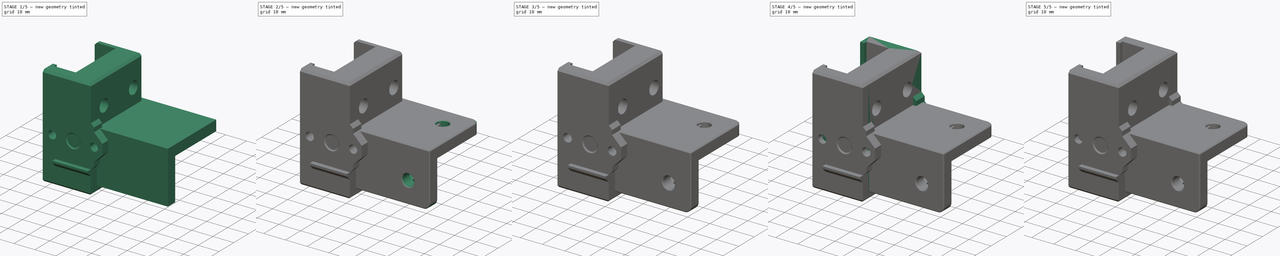
[diagram: build sequence overview — one tinted view per stage of 5, left to right]
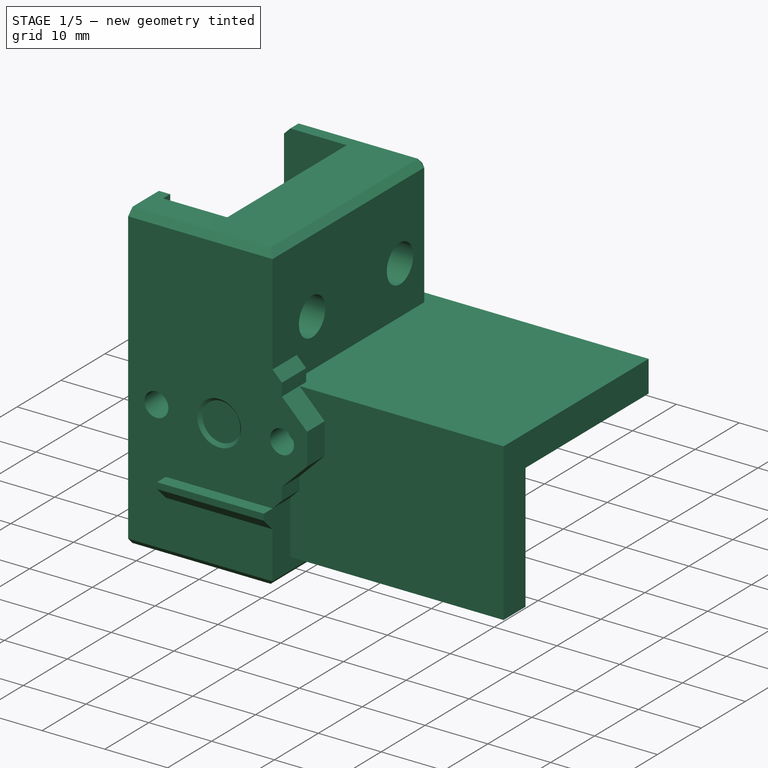
[diagram: stage 1 of 5 — iso view after this stage's code; geometry added in this stage tinted green]
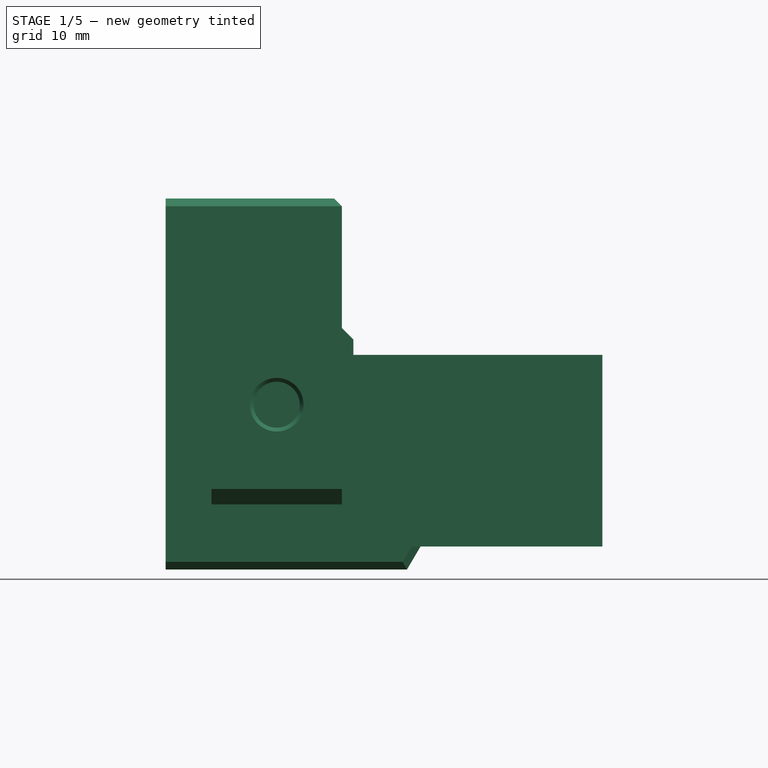
[diagram: stage 1 of 5 — front view after this stage's code; geometry added in this stage tinted green]
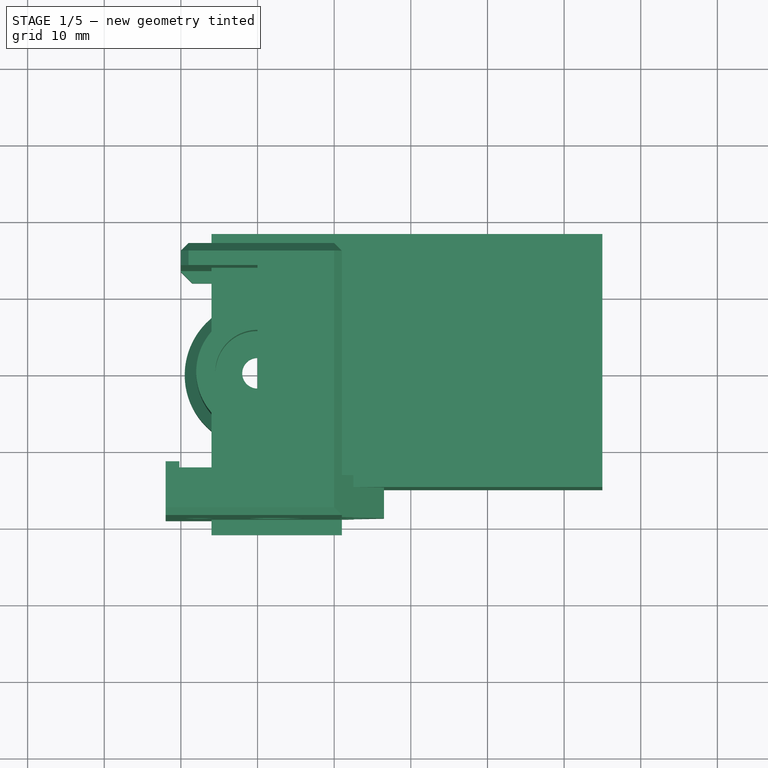
[diagram: stage 1 of 5 — top view after this stage's code; geometry added in this stage tinted green]
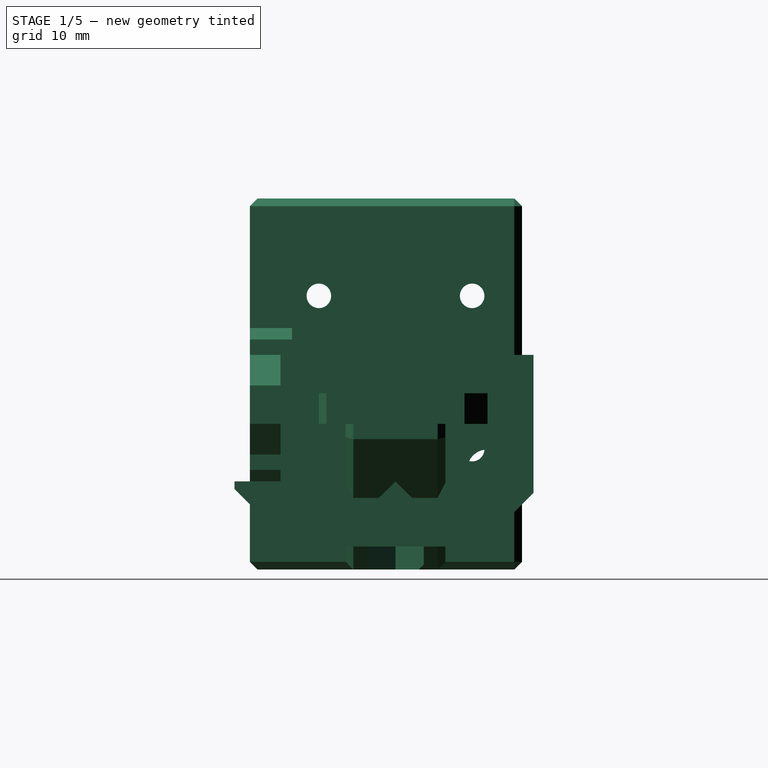
[diagram: stage 1 of 5 — right view after this stage's code; geometry added in this stage tinted green]
FCSTD DOCUMENT  (FreeCAD 0.19R24291 (Git))
Label: z-arm-silicon
License: Other
LicenseURL: GPL3
objects: Sketcher::SketchObject×41, PartDesign::Pocket×30, PartDesign::Chamfer×16, Part::Feature×15, PartDesign::Pad×12, PartDesign::Body×5, PartDesign::FeatureBase×4, Part::Cut×3, PartDesign::Fillet×3, Part::MultiFuse×2, Part::Cylinder×1, Part::Chamfer×1, PartDesign::Plane×1, Part::Mirroring×1
note: 196 computed .brp shape members not serialized (recipe doc carries the construction recipe); baked Part::Feature solids carry a one-line shape summary decoded from their .brp

FEATURE [PartDesign::Body] Body004  label="bed-arm-middle-1515"
  BaseFeature = -> Pocket020
  Group = -> [Clone,Sketch026,Pocket021,Sketch027,Pocket022,Sketch028,Pad005,Sketch029,Pad006,Chamfer004013007011015006009007001005003063003001002001002001007002018,Fillet,Chamfer004013007011015006009007001005003063003001002001002001007002019]
  Origin = -> Origin004
  Tip = -> Chamfer004013007011015006009007001005003063003001002001002001007002019
FEATURE [Part::Feature] Chamfer004013007011015006009007001001  label="2020-pref"
  Placement = pos=(0,0,-8) rot=(0,0,1;0rad)
  shape: bbox 51 x 20 x 25 mm, 56 faces (baked)
FEATURE [Sketcher::SketchObject] Sketch048
  FullyConstrained = true
  MapMode = 5
  Support = -> [XY_Plane006]
  sketch-geometry (7):
    g0: Circle CenterX=0 CenterY=0 CenterZ=0 NormalX=0 NormalY=0 NormalZ=1 AngleXU=0 Radius=2
    g1: ArcOfCircle CenterX=0 CenterY=0 CenterZ=0 NormalX=0 NormalY=0 NormalZ=1 AngleXU=0 Radius=9.5 StartAngle=2.25438 EndAngle=4.0288
    g2: LineSegment StartX=-6 StartY=18 StartZ=0 EndX=25 EndY=18 EndZ=0
    g3: LineSegment StartX=25 StartY=18 StartZ=0 EndX=25 EndY=-15 EndZ=0
    g4: LineSegment StartX=25 StartY=-15 StartZ=0 EndX=-6 EndY=-15 EndZ=0
    g5: LineSegment StartX=-6 StartY=-15 StartZ=0 EndX=-6 EndY=-7.36546 EndZ=0
    g6: LineSegment StartX=-6 StartY=7.36546 StartZ=0 EndX=-6 EndY=18 EndZ=0
  constraints (19):
    c: Coincident(g0,g-1)
    c: Radius(g0) = 2
    c: Coincident(g1,g0)
    c: Coincident(g2,g3)
    c: Coincident(g3,g4)
    c: Coincident(g4,g5)
    c: Coincident(g6,g2)
    c: Horizontal(g2)
    c: Horizontal(g4)
    c: Vertical(g3)
    c: Vertical(g5)
    c: Radius(g1) = 9.5
    c: DistanceX(g2,g0) = 6
    c: DistanceY(g0,g2) = 18
    c: DistanceY(g4,g0) = 15
    c: DistanceX(g0,g2) = 25
    c: Coincident(g5,g1)
    c: Coincident(g6,g1)
    c: Tangent(g5,g6)
FEATURE [PartDesign::Pad] Pad012
  Direction = (1,1,1)
  Length = 25
  Length2 = 100
  Profile = -> Sketch048
  Type = 0
FEATURE [Sketcher::SketchObject] Sketch049
  ExternalGeometry = -> [Pad012]
  FullyConstrained = true
  MapMode = 5
  Placement = pos=(25,0,0) rot=(0.57735,0.57735,0.57735;2.0944rad)
  Support = -> [Pad012]
  sketch-geometry (6):
    g0: LineSegment StartX=18 StartY=25 StartZ=0 EndX=18 EndY=20 EndZ=0
    g1: LineSegment StartX=18 StartY=20 StartZ=0 EndX=-10 EndY=20 EndZ=0
    g2: LineSegment StartX=-10 StartY=20 StartZ=0 EndX=-10 EndY=0 EndZ=0
    g3: LineSegment StartX=-10 StartY=0 StartZ=0 EndX=-15 EndY=0 EndZ=0
    g4: LineSegment StartX=-15 StartY=0 StartZ=0 EndX=-15 EndY=25 EndZ=0
    g5: LineSegment StartX=-15 StartY=25 StartZ=0 EndX=18 EndY=25 EndZ=0
  constraints (15):
    c: Coincident(g-4,g0)
    c: Vertical(g0)
    c: Coincident(g0,g1)
    c: Horizontal(g1)
    c: Coincident(g1,g2)
    c: PointOnObject(g2,g-1)
    c: Vertical(g2)
    c: Coincident(g2,g3)
    c: Coincident(g3,g-3)
    c: Coincident(g3,g4)
    c: Coincident(g4,g-4)
    c: Coincident(g4,g5)
    c: Coincident(g5,g0)
    c: DistanceX(g3,g3) = 5
    c: DistanceY(g0,g0) = 5
FEATURE [PartDesign::Pad] Pad013
  BaseFeature = -> Pad012
  Direction = (1,1,1)
  Length = 20
  Length2 = 100
  Profile = -> Sketch049
  Type = 0
FEATURE [Sketcher::SketchObject] Sketch050
  FullyConstrained = true
  MapMode = 5
  Placement = pos=(0,0,0) rot=(1,0,0;3.14159rad)
  Support = -> [Pad013]
  sketch-geometry (1):
    g0: Circle CenterX=0 CenterY=0 CenterZ=0 NormalX=0 NormalY=0 NormalZ=1 AngleXU=0 Radius=8
  constraints (2):
    c: Coincident(g0,g-1)
    c: Radius(g0) = 8
FEATURE [PartDesign::Pocket] Pocket036
  BaseFeature = -> Pad013
  Length = 3
  Length2 = 100
  Profile = -> Sketch050
  Type = 0
FEATURE [Sketcher::SketchObject] Sketch051
  FullyConstrained = true
  MapMode = 5
  Placement = pos=(0,0,25) rot=(0,0,1;0rad)
  Support = -> [Pocket036]
  sketch-geometry (1):
    g0: Circle CenterX=0 CenterY=0 CenterZ=0 NormalX=0 NormalY=0 NormalZ=1 AngleXU=0 Radius=5.5
  constraints (2):
    c: Coincident(g0,g-1)
    c: Radius(g0) = 5.5
FEATURE [PartDesign::Pocket] Pocket037
  BaseFeature = -> Pocket036
  Length = 9
  Length2 = 100
  Profile = -> Sketch051
  Type = 0
FEATURE [Sketcher::SketchObject] Sketch052
  ExternalGeometry = -> [Pocket037]
  FullyConstrained = true
  MapMode = 5
  Placement = pos=(-6,0,0) rot=(0.57735,-0.57735,-0.57735;2.0944rad)
  Support = -> [Pocket037]
  sketch-geometry (1):
    g0: Circle CenterX=-12 CenterY=10 CenterZ=0 NormalX=0 NormalY=0 NormalZ=1 AngleXU=0 Radius=2.65
  constraints (3):
    c: DistanceX(g-3,g0) = 6
    c: DistanceY(g-1,g0) = 10
    c: Radius(g0) = 2.65
FEATURE [PartDesign::Pocket] Pocket038
  BaseFeature = -> Pocket037
  Length = 5
  Length2 = 100
  Profile = -> Sketch052
  Type = 1
FEATURE [Sketcher::SketchObject] Sketch054
  ExternalGeometry = -> [Pocket038]
  FullyConstrained = true
  MapMode = 5
  Placement = pos=(0,-15,0) rot=(1,0,0;1.5708rad)
  Support = -> [Pocket038]
  sketch-geometry (4):
    g0: LineSegment StartX=-9.5 StartY=25 StartZ=0 EndX=-6 EndY=25 EndZ=0
    g1: LineSegment StartX=-6 StartY=25 StartZ=0 EndX=-6 EndY=6 EndZ=0
    g2: LineSegment StartX=-6 StartY=6 StartZ=0 EndX=-9.5 EndY=2 EndZ=0
    g3: LineSegment StartX=-9.5 StartY=2 StartZ=0 EndX=-9.5 EndY=25 EndZ=0
  constraints (10):
    c: Coincident(g-3,g0)
    c: Coincident(g0,g-4)
    c: Coincident(g0,g1)
    c: PointOnObject(g1,g-4)
    c: Coincident(g1,g2)
    c: Coincident(g2,g3)
    c: Coincident(g3,g0)
    c: Vertical(g3)
    c: DistanceY(g2,g1) = 4
    c: DistanceY(g-4,g2) = 2
FEATURE [PartDesign::Pocket] Pocket039
  BaseFeature = -> Pocket038
  Length = 5
  Length2 = 100
  Profile = -> Sketch054
  Refine = true
  Type = 1
FEATURE [Sketcher::SketchObject] Sketch055
  ExternalGeometry = -> [Pocket039]
  FullyConstrained = true
  MapMode = 5
  Placement = pos=(-6,0,0) rot=(0.57735,-0.57735,-0.57735;2.0944rad)
  Support = -> [Pocket039]
  sketch-geometry (5):
    g0: ArcOfCircle CenterX=-12 CenterY=10 CenterZ=0 NormalX=0 NormalY=0 NormalZ=1 AngleXU=0 Radius=5.5 StartAngle=5.11096 EndAngle=7.85398
    g1: LineSegment StartX=-12 StartY=15.5 StartZ=0 EndX=-18 EndY=15.5 EndZ=0
    g2: LineSegment StartX=-9.86546 StartY=4.9311 StartZ=0 EndX=-9.86546 EndY=0 EndZ=0
    g3: LineSegment StartX=-9.86546 StartY=0 StartZ=0 EndX=-18 EndY=0 EndZ=0
    g4: LineSegment StartX=-18 StartY=0 StartZ=0 EndX=-18 EndY=15.5 EndZ=0
  constraints (13):
    c: Coincident(g0,g-3)
    c: Radius(g0) = 5.5
    c: PointOnObject(g1,g-4)
    c: Horizontal(g1)
    c: Coincident(g2,g0)
    c: PointOnObject(g2,g-1)
    c: Vertical(g2)
    c: Coincident(g3,g2)
    c: Coincident(g3,g-4)
    c: Coincident(g4,g3)
    c: Coincident(g4,g1)
    c: Tangent(g1,g0) = -1.5708
    c: DistanceX(g0,g-5) = 2.5
FEATURE [PartDesign::Pocket] Pocket040
  BaseFeature = -> Pocket039
  Length = 1.5
  Length2 = 100
  Profile = -> Sketch055
  Type = 0
FEATURE [PartDesign::Chamfer] Chamfer004013007011015006009007001005003063003001002001002001007002024
  Angle = 45
  Base = -> Pocket040 [Edge11]
  BaseFeature = -> Pocket040
  ChamferType = 0
  FlipDirection = false
  Size = 7
  Size2 = 1
  SupportTransform = false
FEATURE [Sketcher::SketchObject] Sketch056
  FullyConstrained = true
  MapMode = 5
  Placement = pos=(-3e-16,0,25) rot=(0,0,1;0rad)
  Support = -> [Chamfer004013007011015006009007001005003063003001002001002001007002024]
  sketch-geometry (2):
    g0: Circle CenterX=0 CenterY=0 CenterZ=0 NormalX=0 NormalY=0 NormalZ=1 AngleXU=0 Radius=8
    g1: Circle CenterX=0 CenterY=0 CenterZ=0 NormalX=0 NormalY=0 NormalZ=1 AngleXU=0 Radius=5.5
  constraints (4):
    c: Coincident(g0,g-1)
    c: Coincident(g1,g0)
    c: Radius(g1) = 5.5
    c: Radius(g0) = 8
FEATURE [PartDesign::Pad] Pad014
  BaseFeature = -> Chamfer004013007011015006009007001005003063003001002001002001007002024
  Direction = (1,1,1)
  Length = 15
  Length2 = 100
  Profile = -> Sketch056
  Reversed = true
  Type = 0
FEATURE [Sketcher::SketchObject] Sketch057
  ExternalGeometry = -> [Pad014]
  FullyConstrained = true
  MapMode = 5
  Placement = pos=(0,-15,0) rot=(1,0,0;1.5708rad)
  Support = -> [Pad014]
  sketch-geometry (3):
    g0: LineSegment StartX=-6 StartY=10 StartZ=0 EndX=-8 EndY=15.5 EndZ=0
    g1: LineSegment StartX=-8 StartY=15.5 StartZ=0 EndX=-8 EndY=10 EndZ=0
    g2: LineSegment StartX=-8 StartY=10 StartZ=0 EndX=-6 EndY=10 EndZ=0
  constraints (7):
    c: Coincident(g-3,g0)
    c: Coincident(g0,g1)
    c: Coincident(g1,g-3)
    c: Vertical(g1)
    c: Coincident(g1,g2)
    c: Coincident(g2,g0)
    c: DistanceY(g1,g1) = 5.5
FEATURE [PartDesign::Pocket] Pocket041
  BaseFeature = -> Pad014
  Length = 5
  Length2 = 100
  Profile = -> Sketch057
  Refine = true
  Type = 1
FEATURE [Sketcher::SketchObject] Sketch058
  FullyConstrained = true
  MapMode = 5
  Placement = pos=(0,0,3) rot=(1,0,0;3.14159rad)
  Support = -> [Pocket041]
  sketch-geometry (1):
    g0: Circle CenterX=0 CenterY=0 CenterZ=0 NormalX=0 NormalY=0 NormalZ=1 AngleXU=0 Radius=2.5
  constraints (2):
    c: Coincident(g0,g-1)
    c: Radius(g0) = 2.5
FEATURE [PartDesign::Pocket] Pocket042
  BaseFeature = -> Pocket041
  Length = 9.5
  Length2 = 100
  Profile = -> Sketch058
  Type = 0
FEATURE [PartDesign::Chamfer] Chamfer004013007011015006009007001005003063003001002001002001007002025
  Angle = 45
  Base = -> Pocket042 [Edge38]
  BaseFeature = -> Pocket042
  ChamferType = 1
  FlipDirection = false
  Size = 1.75
  Size2 = 0.49
  SupportTransform = false
FEATURE [Sketcher::SketchObject] Sketch059
  FullyConstrained = true
  MapMode = 5
  Placement = pos=(0,0,16) rot=(0,0,1;0rad)
  Support = -> [Chamfer004013007011015006009007001005003063003001002001002001007002025]
  sketch-geometry (4):
    g0: ArcOfCircle CenterX=0 CenterY=0 CenterZ=0 NormalX=0 NormalY=0 NormalZ=1 AngleXU=0 Radius=5.5 StartAngle=1.19863 EndAngle=1.94296
    g1: ArcOfCircle CenterX=0 CenterY=0 CenterZ=0 NormalX=0 NormalY=0 NormalZ=1 AngleXU=0 Radius=5.5 StartAngle=4.34022 EndAngle=5.08456
    g2: LineSegment StartX=-2 StartY=5.12348 StartZ=0 EndX=-2 EndY=-5.12348 EndZ=0
    g3: LineSegment StartX=2 StartY=-5.12348 StartZ=0 EndX=2 EndY=5.12348 EndZ=0
  constraints (12):
    c: Coincident(g0,g-1)
    c: Coincident(g1,g0)
    c: Equal(g1,g0)
    c: Coincident(g2,g0)
    c: Coincident(g2,g1)
    c: Vertical(g2)
    c: Coincident(g3,g1)
    c: Coincident(g3,g0)
    c: Vertical(g3)
    c: DistanceX(g0,g0) = 2
    c: DistanceX(g0,g0) = 2
    c: Radius(g0) = 5.5
FEATURE [PartDesign::Pocket] Pocket043
  BaseFeature = -> Chamfer004013007011015006009007001005003063003001002001002001007002025
  Length = 0.2
  Length2 = 100
  Profile = -> Sketch059
  Type = 0
FEATURE [Sketcher::SketchObject] Sketch060
  FullyConstrained = true
  MapMode = 5
  Placement = pos=(0,0,15.8) rot=(0,0,1;0rad)
  Support = -> [Pocket043]
  sketch-geometry (4):
    g0: LineSegment StartX=-2 StartY=2 StartZ=0 EndX=2 EndY=2 EndZ=0
    g1: LineSegment StartX=2 StartY=2 StartZ=0 EndX=2 EndY=-2 EndZ=0
    g2: LineSegment StartX=2 StartY=-2 StartZ=0 EndX=-2 EndY=-2 EndZ=0
    g3: LineSegment StartX=-2 StartY=-2 StartZ=0 EndX=-2 EndY=2 EndZ=0
  constraints (12):
    c: Coincident(g0,g1)
    c: Coincident(g1,g2)
    c: Coincident(g2,g3)
    c: Coincident(g3,g0)
    c: Horizontal(g0)
    c: Horizontal(g2)
    c: Vertical(g1)
    c: Vertical(g3)
    c: DistanceX(g0,g-1) = 2
    c: DistanceX(g0,g0) = 4
    c: DistanceY(g-1,g0) = 2
    c: DistanceY(g1,g1) = 4
FEATURE [PartDesign::Pocket] Pocket044
  BaseFeature = -> Pocket043
  Length = 0.2
  Length2 = 100
  Profile = -> Sketch060
  Type = 0
FEATURE [PartDesign::Body] Body006  label="bed-arm-corner-2020-corner"
  Group = -> [Sketch048,Pad012,Sketch049,Pad013,Sketch050,Pocket036,Sketch051,Pocket037,Sketch052,Pocket038,Sketch054,Pocket039,Sketch055,Pocket040,Chamfer004013007011015006009007001005003063003001002001002001007002024,Sketch056,Pad014,Sketch057,Pocket041,Sketch058,Pocket042,Chamfer004013007011015006009007001005003063003001002001002001007002025,Sketch059,Pocket043,Sketch060,Pocket044,Sketch061,Pocket045,+12 more]
  Origin = -> Origin006
  Placement = pos=(22,0,27) rot=(0,0,1;0rad)
  Tip = -> Chamfer004013007011015006009007001005003063003001002001002001007002027
FEATURE [Part::Feature] Fusion004025023004001001  label="bed-arm-corner-2020-mid"
  shape: bbox 54.5 x 36 x 25 mm, 116 faces (baked)
FEATURE [Part::Feature] Body003001  label="rail-arm-fdm001"
  shape: bbox 45 x 37.5 x 48.4 mm, 126 faces (baked)
FEATURE [Part::Mirroring] Part__Mirroring  label="rail-arm-fdm001 (Mirror #1)"
  Base = (0,0,0)
  Normal = (0,1,0)
  Source = -> Body003001
FEATURE [Part::Feature] Chamfer004013007011015006009007001005003063003001002001002001007002010001  label="arm-left"
  shape: bbox 45 x 37.5 x 48.4 mm, 126 faces (baked)
FEATURE [Part::Feature] Part__Mirroring001001  label="arm-right"
  shape: bbox 45 x 37.5 x 48.4 mm, 126 faces (baked)
FEATURE [Part::Feature] Fusion004025023004001002001  label="arm-right-counter-weight"
  shape: bbox 45 x 42 x 48.4 mm, 139 faces (baked)
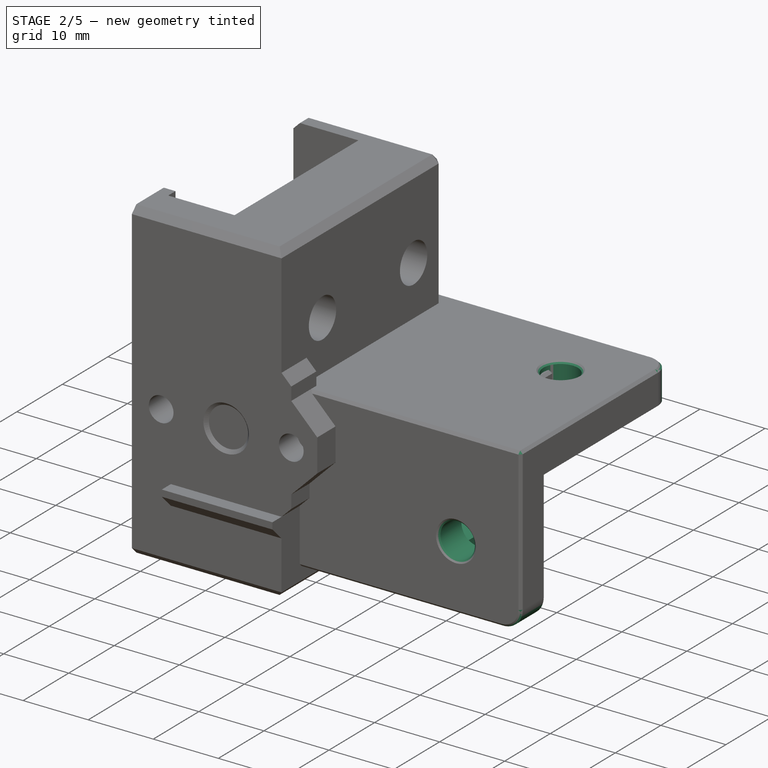
[diagram: stage 2 of 5 — iso view after this stage's code; geometry added in this stage tinted green]
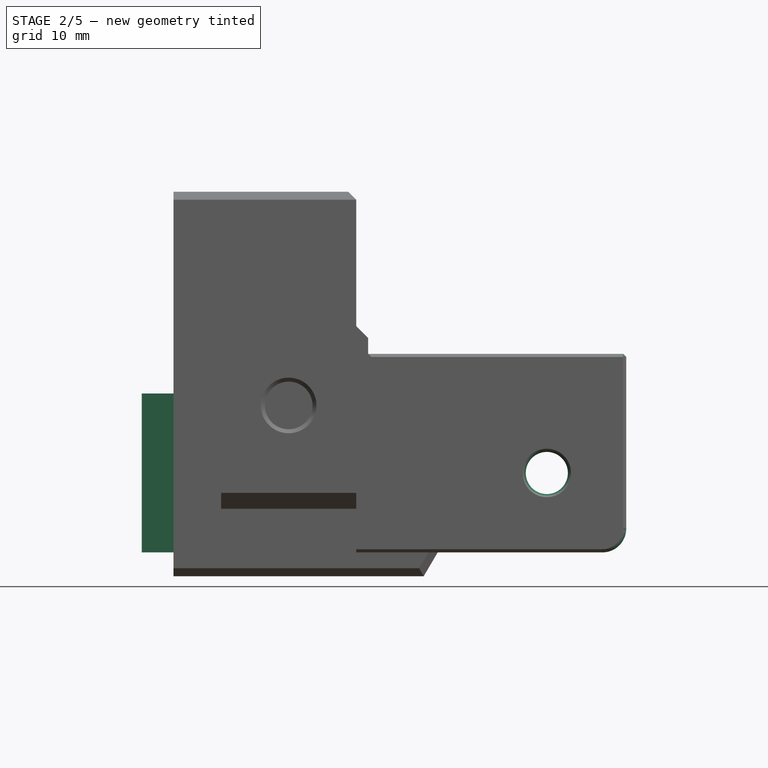
[diagram: stage 2 of 5 — front view after this stage's code; geometry added in this stage tinted green]
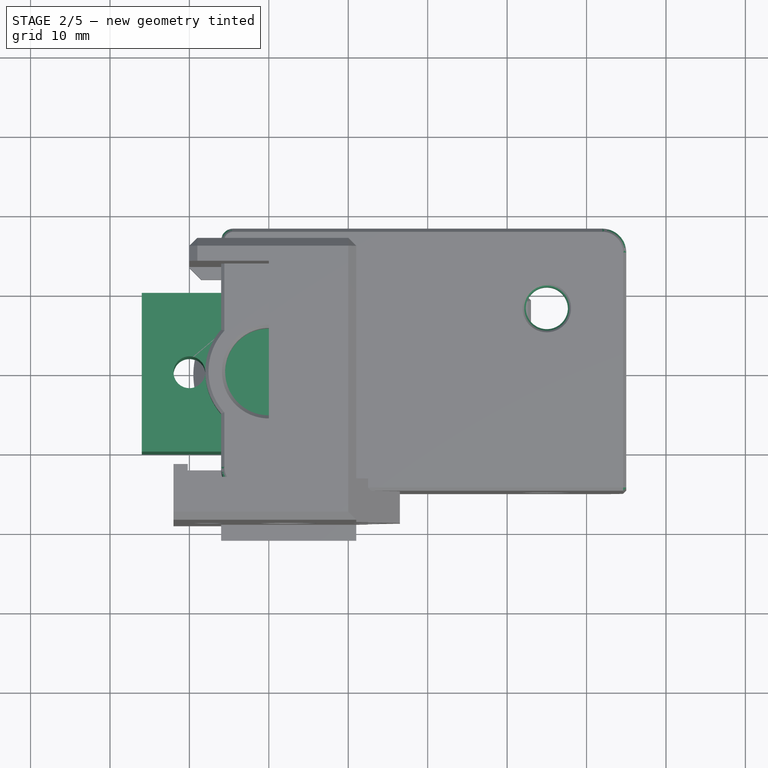
[diagram: stage 2 of 5 — top view after this stage's code; geometry added in this stage tinted green]
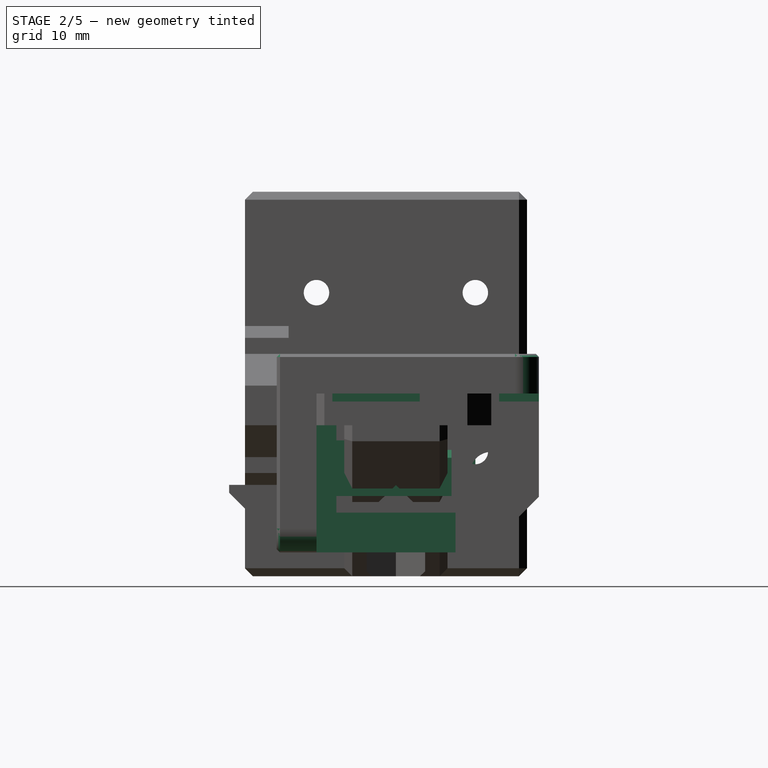
[diagram: stage 2 of 5 — right view after this stage's code; geometry added in this stage tinted green]
FEATURE [PartDesign::Body] Body  label="rail-arm"
  BaseFeature = -> Cut028006004005011004004
  Group = -> [BaseFeature,Sketch,Pad,Sketch001,Pocket,DatumPlane,Sketch002,Pocket001,Chamfer004013007011015006009007001005003063003001002001002001007002002,Chamfer004013007011015006009007001005003063003001002001002001007002003]
  Origin = -> Origin
  Tip = -> Chamfer004013007011015006009007001005003063003001002001002001007002003
FEATURE [Part::Feature] Defeatured001001
  shape: bbox 46 x 20 x 20 mm, 67 faces (baked)
FEATURE [PartDesign::FeatureBase] BaseFeature001
  BaseFeature = -> Defeatured001001
FEATURE [Sketcher::SketchObject] Sketch003
  ExternalGeometry = -> [BaseFeature001]
  FullyConstrained = true
  MapMode = 5
  Placement = pos=(2e-16,10,-4e-16) rot=(0,0.707107,0.707107;3.14159rad)
  Support = -> [BaseFeature001]
  sketch-geometry (4):
    g0: LineSegment StartX=-3 StartY=5 StartZ=0 EndX=0 EndY=5 EndZ=0
    g1: LineSegment StartX=0 StartY=5 StartZ=0 EndX=0 EndY=20 EndZ=0
    g2: LineSegment StartX=0 StartY=20 StartZ=0 EndX=-3 EndY=20 EndZ=0
    g3: LineSegment StartX=-3 StartY=20 StartZ=0 EndX=-3 EndY=5 EndZ=0
  constraints (11):
    c: Coincident(g0,g1)
    c: Coincident(g1,g2)
    c: Coincident(g2,g3)
    c: Coincident(g3,g0)
    c: Horizontal(g0)
    c: Horizontal(g2)
    c: Vertical(g1)
    c: Vertical(g3)
    c: PointOnObject(g0,g-4)
    c: Coincident(g1,g-3)
    c: DistanceX(g2,g2) = 3
FEATURE [PartDesign::Pocket] Pocket002
  BaseFeature = -> BaseFeature001
  Length = 17.5
  Length2 = 100
  Profile = -> Sketch003
  Refine = true
  Type = 0
FEATURE [Sketcher::SketchObject] Sketch004
  ExternalGeometry = -> [Pocket002]
  FullyConstrained = true
  MapMode = 5
  Placement = pos=(2e-16,10,-4e-16) rot=(0,0.707107,0.707107;3.14159rad)
  Support = -> [Pocket002]
  sketch-geometry (5):
    g0: LineSegment StartX=2e-16 StartY=5 StartZ=0 EndX=16 EndY=5 EndZ=0
    g1: LineSegment StartX=16 StartY=5 StartZ=0 EndX=16 EndY=8 EndZ=0
    g2: LineSegment StartX=16 StartY=8 StartZ=0 EndX=4 EndY=20 EndZ=0
    g3: LineSegment StartX=4 StartY=20 StartZ=0 EndX=0 EndY=20 EndZ=0
    g4: LineSegment StartX=0 StartY=20 StartZ=0 EndX=2e-16 EndY=5 EndZ=0
  constraints (11):
    c: Coincident(g-6,g0)
    c: PointOnObject(g0,g-5)
    c: Horizontal(g0)
    c: Coincident(g0,g1)
    c: Coincident(g1,g-5)
    c: Coincident(g1,g2)
    c: Coincident(g2,g-4)
    c: Coincident(g2,g3)
    c: Coincident(g3,g-3)
    c: Coincident(g3,g4)
    c: Coincident(g4,g0)
FEATURE [PartDesign::Pad] Pad001
  BaseFeature = -> Pocket002
  Direction = (1,1,1)
  Length = 10
  Length2 = 100
  Profile = -> Sketch004
  Refine = true
  Type = 3
  UpToFace = -> Pocket002 [Face15]
FEATURE [Sketcher::SketchObject] Sketch005
  ExternalGeometry = -> [Pad001]
  FullyConstrained = true
  MapMode = 5
  Placement = pos=(2e-16,10,-4e-16) rot=(0,0.707107,0.707107;3.14159rad)
  Support = -> [Pad001]
  sketch-geometry (3):
    g0: LineSegment StartX=4 StartY=20 StartZ=0 EndX=16 EndY=20 EndZ=0
    g1: LineSegment StartX=16 StartY=20 StartZ=0 EndX=16 EndY=8 EndZ=0
    g2: LineSegment StartX=16 StartY=8 StartZ=0 EndX=4 EndY=20 EndZ=0
  constraints (7):
    c: Coincident(g-3,g0)
    c: Horizontal(g0)
    c: Coincident(g0,g1)
    c: Coincident(g1,g-3)
    c: Coincident(g1,g2)
    c: Coincident(g2,g0)
    c: Vertical(g1)
FEATURE [PartDesign::Pad] Pad002
  BaseFeature = -> Pad001
  Direction = (1,1,1)
  Length = 10
  Length2 = 100
  Profile = -> Sketch005
  Refine = true
  Reversed = true
  Type = 3
  UpToFace = -> Pad001 [Face25]
FEATURE [Sketcher::SketchObject] Sketch006
  FullyConstrained = true
  MapMode = 5
  Placement = pos=(0,0,0) rot=(1,0,0;3.14159rad)
  Support = -> [Pad002]
  sketch-geometry (1):
    g0: Circle CenterX=-10 CenterY=0 CenterZ=0 NormalX=0 NormalY=0 NormalZ=1 AngleXU=0 Radius=2
  constraints (3):
    c: PointOnObject(g0,g-1)
    c: Radius(g0) = 2
    c: DistanceX(g0,g-1) = 10
FEATURE [PartDesign::Pocket] Pocket003
  BaseFeature = -> Pad002
  Length = 5
  Length2 = 100
  Profile = -> Sketch006
  Type = 1
FEATURE [Sketcher::SketchObject] Sketch061
  ExternalGeometry = -> [Pocket044]
  FullyConstrained = true
  MapMode = 5
  Placement = pos=(-6,0,0) rot=(0.57735,-0.57735,-0.57735;2.0944rad)
  Support = -> [Pocket044]
  sketch-geometry (1):
    g0: Circle CenterX=-12 CenterY=10 CenterZ=0 NormalX=0 NormalY=0 NormalZ=1 AngleXU=0 Radius=5.5
  constraints (2):
    c: Coincident(g0,g-3)
    c: Radius(g0) = 5.5
FEATURE [PartDesign::Pocket] Pocket045
  BaseFeature = -> Pocket044
  Length = 1.5
  Length2 = 100
  Profile = -> Sketch061
  Refine = true
  Type = 0
FEATURE [PartDesign::Fillet] Fillet003
  Base = -> Pocket045 [Edge45]
  BaseFeature = -> Pocket045
  Radius = 1.49
  SupportTransform = false
FEATURE [Sketcher::SketchObject] Sketch062
  ExternalGeometry = -> [Fillet003]
  FullyConstrained = true
  MapMode = 5
  Placement = pos=(0,0,20) rot=(1,0,0;3.14159rad)
  Support = -> [Fillet003]
  sketch-geometry (1):
    g0: Circle CenterX=35 CenterY=-8 CenterZ=0 NormalX=0 NormalY=0 NormalZ=1 AngleXU=0 Radius=2.65
  constraints (3):
    c: DistanceX(g0,g-4) = 10
    c: DistanceY(g-4,g0) = 10
    c: Radius(g0) = 2.65
FEATURE [PartDesign::Pocket] Pocket046
  BaseFeature = -> Fillet003
  Length = 5
  Length2 = 100
  Profile = -> Sketch062
  Type = 1
FEATURE [Sketcher::SketchObject] Sketch063
  ExternalGeometry = -> [Pocket046]
  FullyConstrained = true
  MapMode = 5
  Placement = pos=(0,-10,0) rot=(0,0.707107,0.707107;3.14159rad)
  Support = -> [Pocket046]
  sketch-geometry (1):
    g0: Circle CenterX=-35 CenterY=10 CenterZ=0 NormalX=0 NormalY=0 NormalZ=1 AngleXU=0 Radius=2.65
  constraints (3):
    c: Radius(g0) = 2.65
    c: DistanceY(g-3,g0) = 10
    c: DistanceX(g-3,g0) = 10
FEATURE [PartDesign::Pocket] Pocket047
  BaseFeature = -> Pocket046
  Length = 5
  Length2 = 100
  Profile = -> Sketch063
  Type = 1
FEATURE [Sketcher::SketchObject] Sketch064
  ExternalGeometry = -> [Pocket047]
  FullyConstrained = true
  MapMode = 5
  Placement = pos=(25,0,0) rot=(0.57735,0.57735,0.57735;2.0944rad)
  Support = -> [Pocket047]
  sketch-geometry (4):
    g0: LineSegment StartX=-8 StartY=12.9 StartZ=0 EndX=7 EndY=12.9 EndZ=0
    g1: LineSegment StartX=7 StartY=12.9 StartZ=0 EndX=7 EndY=7.1 EndZ=0
    g2: LineSegment StartX=7 StartY=7.1 StartZ=0 EndX=-8 EndY=7.1 EndZ=0
    g3: LineSegment StartX=-8 StartY=7.1 StartZ=0 EndX=-8 EndY=12.9 EndZ=0
  constraints (12):
    c: Coincident(g0,g1)
    c: Coincident(g1,g2)
    c: Coincident(g2,g3)
    c: Coincident(g3,g0)
    c: Horizontal(g0)
    c: Horizontal(g2)
    c: Vertical(g1)
    c: Vertical(g3)
    c: DistanceX(g0,g-4) = 5
    c: DistanceY(g1,g1) = 5.8
    c: DistanceY(g-4,g0) = 2.9
    c: DistanceX(g-3,g0) = 2
FEATURE [PartDesign::Pad] Pad015
  BaseFeature = -> Pocket047
  Direction = (1,1,1)
  Length = 1
  Length2 = 100
  Profile = -> Sketch064
  Type = 0
FEATURE [Sketcher::SketchObject] Sketch065
  ExternalGeometry = -> [Pad015]
  FullyConstrained = true
  MapMode = 5
  Placement = pos=(0,0,20) rot=(1,0,0;3.14159rad)
  Support = -> [Pad015]
  sketch-geometry (8):
    g0: LineSegment StartX=32.1 StartY=8 StartZ=0 EndX=37.9 EndY=8 EndZ=0
    g1: LineSegment StartX=37.9 StartY=8 StartZ=0 EndX=37.9 EndY=-3 EndZ=0
    g2: LineSegment StartX=37.9 StartY=-3 StartZ=0 EndX=32.1 EndY=-3 EndZ=0
    g3: LineSegment StartX=32.1 StartY=-3 StartZ=0 EndX=32.1 EndY=8 EndZ=0
    g4: LineSegment StartX=32.1 StartY=-18 StartZ=0 EndX=37.9 EndY=-18 EndZ=0
    g5: LineSegment StartX=37.9 StartY=-18 StartZ=0 EndX=37.9 EndY=-13 EndZ=0
    g6: LineSegment StartX=37.9 StartY=-13 StartZ=0 EndX=32.1 EndY=-13 EndZ=0
    g7: LineSegment StartX=32.1 StartY=-13 StartZ=0 EndX=32.1 EndY=-18 EndZ=0
  constraints (24):
    c: Coincident(g0,g1)
    c: Coincident(g1,g2)
    c: Coincident(g2,g3)
    c: Coincident(g3,g0)
    c: Horizontal(g0)
    c: Horizontal(g2)
    c: Vertical(g1)
    c: Vertical(g3)
    c: Coincident(g4,g5)
    c: Coincident(g5,g6)
    c: Coincident(g6,g7)
    c: Coincident(g7,g4)
    c: Horizontal(g4)
    c: Horizontal(g6)
    c: Vertical(g5)
    c: Vertical(g7)
    c: PointOnObject(g4,g-3)
    c: DistanceX(g2,g2) = 5.8
    c: DistanceX(g2,g-5) = 2.9
    c: Vertical(g2,g6)
    c: Vertical(g1,g5)
    c: DistanceY(g0,g-4) = 2
    c: DistanceY(g-5,g1) = 5
    c: DistanceY(g5,g-5) = 5
FEATURE [PartDesign::Pad] Pad016
  BaseFeature = -> Pad015
  Direction = (1,1,1)
  Length = 1
  Length2 = 100
  Profile = -> Sketch065
  Type = 0
FEATURE [PartDesign::Chamfer] Chamfer004013007011015006009007001005003063003001002001002001007002026
  Angle = 45
  Base = -> Pad016 [Edge119]
  BaseFeature = -> Pad016
  ChamferType = 0
  FlipDirection = false
  Size = 0.99
  Size2 = 1
  SupportTransform = false
FEATURE [PartDesign::Fillet] Fillet004
  Base = -> Chamfer004013007011015006009007001005003063003001002001002001007002026 [Edge65,Edge25,Edge41]
  BaseFeature = -> Chamfer004013007011015006009007001005003063003001002001002001007002026
  Radius = 3
  SupportTransform = false
FEATURE [PartDesign::Chamfer] Chamfer004013007011015006009007001005003063003001002001002001007002027
  Angle = 45
  Base = -> Fillet004 [Edge10,Edge8,Edge6,Edge4,Edge11,Edge9,Edge7,Edge32,Edge41,Edge98,Edge52,Edge54,Edge55,Edge53,Edge19,Edge30,Face22,Edge31,Edge12,Edge101,Edge42]
  BaseFeature = -> Fillet004
  ChamferType = 0
  FlipDirection = false
  Size = 0.4
  Size2 = 1
  SupportTransform = false
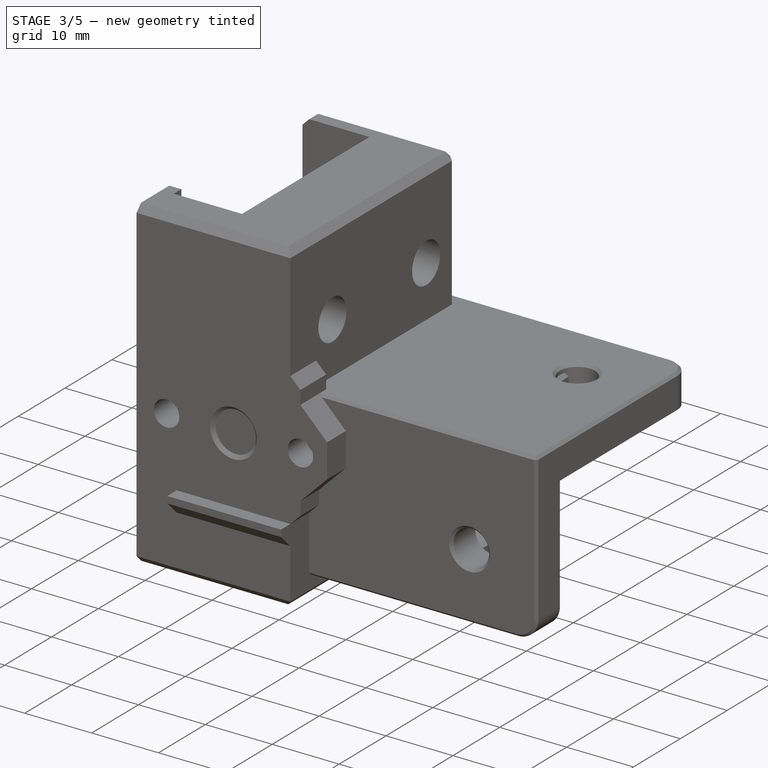
[diagram: stage 3 of 5 — iso view after this stage's code; geometry added in this stage tinted green]
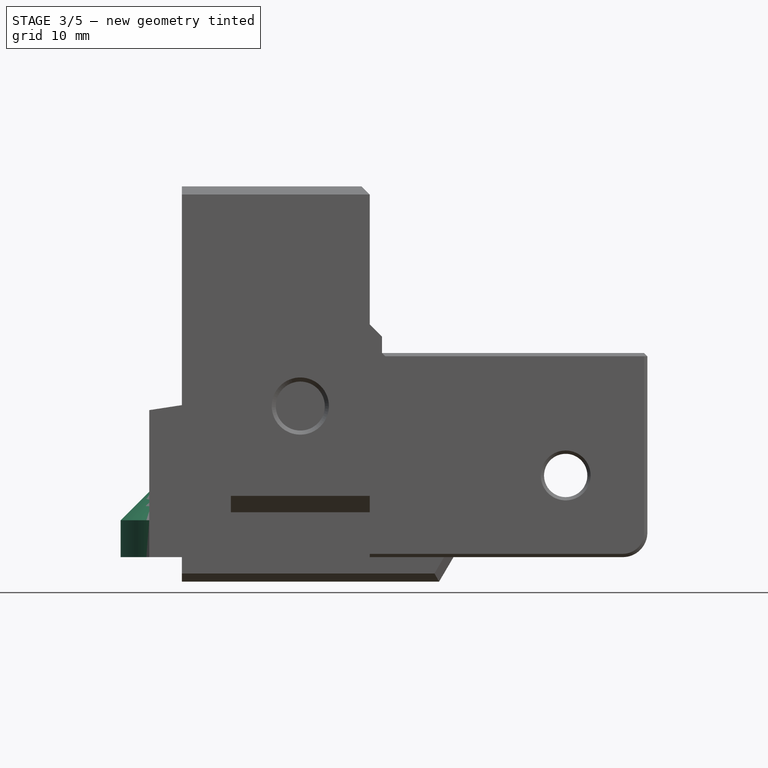
[diagram: stage 3 of 5 — front view after this stage's code; geometry added in this stage tinted green]
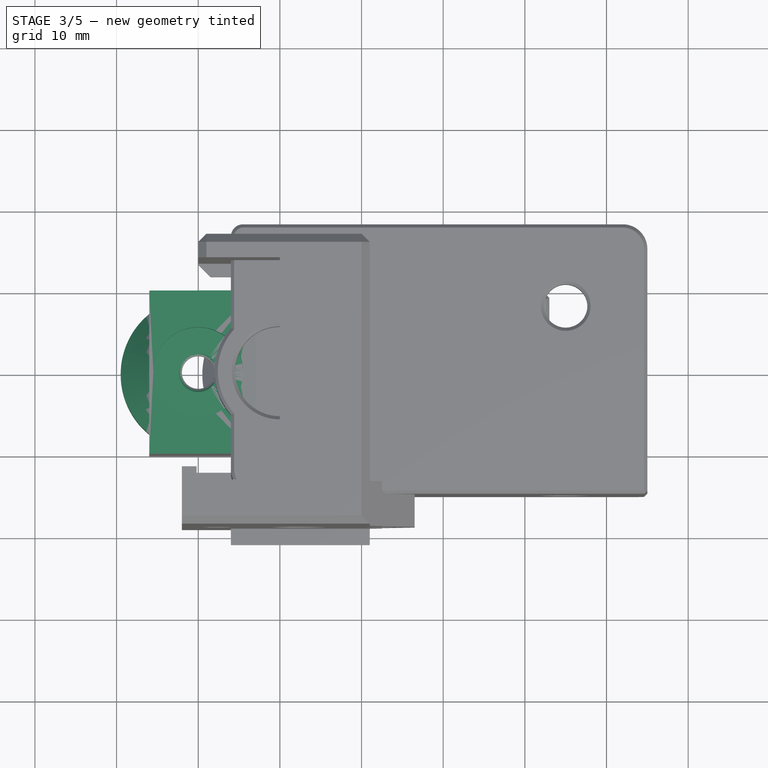
[diagram: stage 3 of 5 — top view after this stage's code; geometry added in this stage tinted green]
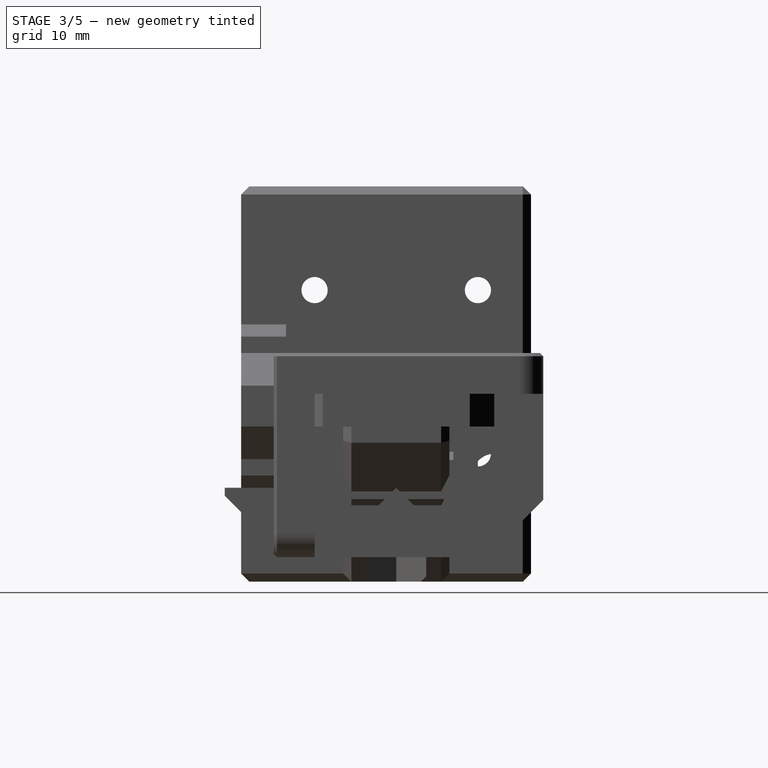
[diagram: stage 3 of 5 — right view after this stage's code; geometry added in this stage tinted green]
FEATURE [Sketcher::SketchObject] Sketch007
  ExternalGeometry = -> [Pocket003]
  FullyConstrained = true
  MapMode = 5
  Placement = pos=(0,0,0) rot=(1,0,0;3.14159rad)
  Support = -> [Pocket003]
  sketch-geometry (1):
    g0: Circle CenterX=-10 CenterY=0 CenterZ=0 NormalX=0 NormalY=0 NormalZ=1 AngleXU=0 Radius=8
  constraints (2):
    c: Coincident(g0,g-3)
    c: Radius(g0) = 8
FEATURE [PartDesign::Pocket] Pocket004
  BaseFeature = -> Pocket003
  Length = 3
  Length2 = 100
  Profile = -> Sketch007
  Type = 0
FEATURE [Sketcher::SketchObject] Sketch008
  ExternalGeometry = -> [Pocket004]
  FullyConstrained = true
  MapMode = 5
  Placement = pos=(0,0,0) rot=(0.57735,0.57735,0.57735;2.0944rad)
  Support = -> [Pocket004]
  sketch-geometry (2):
    g0: Circle CenterX=-4.5 CenterY=12.5 CenterZ=0 NormalX=0 NormalY=0 NormalZ=1 AngleXU=0 Radius=1.65
    g1: Circle CenterX=4.5 CenterY=12.5 CenterZ=0 NormalX=0 NormalY=0 NormalZ=1 AngleXU=0 Radius=1.65
  constraints (6):
    c: Horizontal(g1,g0)
    c: DistanceX(g-3,g0) = 3
    c: DistanceX(g0,g1) = 9
    c: DistanceY(g-3,g0) = 7.5
    c: Equal(g0,g1)
    c: Radius(g1) = 1.65
FEATURE [PartDesign::Pocket] Pocket005
  BaseFeature = -> Pocket004
  Length = 5
  Length2 = 100
  Profile = -> Sketch008
  Type = 1
FEATURE [PartDesign::Body] Body003  label="rail-arm-fdm"
  BaseFeature = -> Defeatured
  Group = -> [BaseFeature002,Sketch016,Pocket011,Sketch017,Pocket012,Chamfer004013007011015006009007001005003063003001002001002001007002010]
  Origin = -> Origin003
  Tip = -> Chamfer004013007011015006009007001005003063003001002001002001007002010
FEATURE [PartDesign::Pocket] Pocket013
  BaseFeature = -> Pocket005
  Length = 0.5
  Length2 = 100
  Profile = -> Sketch009
  Type = 0
FEATURE [PartDesign::Chamfer] Chamfer004013007011015006009007001005003063003001002001002001007002011
  Angle = 45
  Base = -> Pocket013 [Edge106]
  BaseFeature = -> Pocket013
  ChamferType = 0
  FlipDirection = false
  Size = 0.49
  Size2 = 1
  SupportTransform = false
FEATURE [Sketcher::SketchObject] Sketch018
  ExternalGeometry = -> [Chamfer004013007011015006009007001005003063003001002001002001007002011]
  FullyConstrained = true
  MapMode = 5
  Placement = pos=(1.4e-15,2.6e-15,20) rot=(0,0,1;0rad)
  Support = -> [Chamfer004013007011015006009007001005003063003001002001002001007002011]
  sketch-geometry (1):
    g0: Circle CenterX=-10 CenterY=0 CenterZ=0 NormalX=0 NormalY=0 NormalZ=1 AngleXU=0 Radius=5.5
  constraints (2):
    c: Coincident(g0,g-3)
    c: Radius(g0) = 5.5
FEATURE [PartDesign::Pocket] Pocket014
  BaseFeature = -> Chamfer004013007011015006009007001005003063003001002001002001007002011
  Length = 3.5
  Length2 = 100
  Profile = -> Sketch018
  Type = 0
FEATURE [Sketcher::SketchObject] Sketch019
  ExternalGeometry = -> [Pocket014]
  FullyConstrained = true
  MapMode = 5
  Placement = pos=(0,10,-1.6e-15) rot=(0,0.707107,0.707107;3.14159rad)
  Support = -> [Pocket014]
  sketch-geometry (3):
    g0: LineSegment StartX=16 StartY=18 StartZ=0 EndX=3 EndY=20 EndZ=0
    g1: LineSegment StartX=3 StartY=20 StartZ=0 EndX=16 EndY=20 EndZ=0
    g2: LineSegment StartX=16 StartY=20 StartZ=0 EndX=16 EndY=18 EndZ=0
  constraints (8):
    c: PointOnObject(g0,g-4)
    c: PointOnObject(g0,g-3)
    c: Coincident(g0,g1)
    c: Coincident(g1,g-4)
    c: Coincident(g1,g2)
    c: Coincident(g2,g0)
    c: DistanceX(g-3,g0) = 3
    c: DistanceY(g2,g2) = 2
FEATURE [PartDesign::Pocket] Pocket015
  BaseFeature = -> Pocket014
  Length = 5
  Length2 = 100
  Profile = -> Sketch019
  Type = 1
FEATURE [Sketcher::SketchObject] Sketch020
  ExternalGeometry = -> [Pocket015]
  FullyConstrained = true
  MapMode = 5
  Placement = pos=(0,0,3) rot=(1,0,0;3.14159rad)
  Support = -> [Pocket015]
  sketch-geometry (1):
    g0: Circle CenterX=-10 CenterY=0 CenterZ=0 NormalX=0 NormalY=0 NormalZ=1 AngleXU=0 Radius=2.65
  constraints (2):
    c: Coincident(g0,g-3)
    c: Radius(g0) = 2.65
FEATURE [PartDesign::Pocket] Pocket016
  BaseFeature = -> Pocket015
  Length = 11.5
  Length2 = 100
  Profile = -> Sketch020
  Type = 0
FEATURE [PartDesign::Chamfer] Chamfer004013007011015006009007001005003063003001002001002001007002012
  Angle = 45
  Base = -> Pocket016 [Edge73]
  BaseFeature = -> Pocket016
  ChamferType = 1
  FlipDirection = false
  Size = 2
  Size2 = 0.64
  SupportTransform = false
FEATURE [PartDesign::Chamfer] Chamfer004013007011015006009007001005003063003001002001002001007002013
  Angle = 45
  Base = -> Chamfer004013007011015006009007001005003063003001002001002001007002012 [Edge25]
  BaseFeature = -> Chamfer004013007011015006009007001005003063003001002001002001007002012
  ChamferType = 0
  FlipDirection = false
  Size = 0.4
  Size2 = 1
  SupportTransform = false
FEATURE [Sketcher::SketchObject] Sketch021
  ExternalGeometry = -> [Chamfer004013007011015006009007001005003063003001002001002001007002013]
  FullyConstrained = true
  MapMode = 5
  Placement = pos=(0,0,0) rot=(1,0,0;3.14159rad)
  Support = -> [Chamfer004013007011015006009007001005003063003001002001002001007002013]
  sketch-geometry (1):
    g0: Circle CenterX=-10 CenterY=0 CenterZ=0 NormalX=0 NormalY=0 NormalZ=1 AngleXU=0 Radius=9.5
  constraints (2):
    c: Coincident(g0,g-3)
    c: Radius(g0) = 9.5
FEATURE [PartDesign::Pad] Pad003
  BaseFeature = -> Chamfer004013007011015006009007001005003063003001002001002001007002013
  Direction = (1,1,1)
  Length = 8
  Length2 = 100
  Profile = -> Sketch021
  Refine = true
  Reversed = true
  Type = 0
FEATURE [PartDesign::Chamfer] Chamfer004013007011015006009007001005003063003001002001002001007002014
  Angle = 45
  Base = -> Pad003 [Edge102]
  BaseFeature = -> Pad003
  ChamferType = 0
  FlipDirection = false
  Size = 3.49
  Size2 = 1
  SupportTransform = false
FEATURE [Sketcher::SketchObject] Sketch022
  ExternalGeometry = -> [Chamfer004013007011015006009007001005003063003001002001002001007002014]
  FullyConstrained = true
  MapMode = 5
  Placement = pos=(0,0,0) rot=(1,0,0;3.14159rad)
  Support = -> [Chamfer004013007011015006009007001005003063003001002001002001007002014]
  sketch-geometry (1):
    g0: Circle CenterX=-10 CenterY=0 CenterZ=0 NormalX=0 NormalY=0 NormalZ=1 AngleXU=0 Radius=8
  constraints (2):
    c: Coincident(g0,g-3)
    c: Radius(g0) = 8
FEATURE [PartDesign::Pocket] Pocket017
  BaseFeature = -> Chamfer004013007011015006009007001005003063003001002001002001007002014
  Length = 3
  Length2 = 100
  Profile = -> Sketch022
  Type = 0
FEATURE [PartDesign::Pocket] Pocket018
  BaseFeature = -> Pocket017
  Length = 5
  Length2 = 100
  Profile = -> Pocket017 [Face68]
  Type = 1
FEATURE [Sketcher::SketchObject] Sketch023
  ExternalGeometry = -> [Pocket018]
  FullyConstrained = true
  MapMode = 5
  Placement = pos=(0,0,3) rot=(1,0,0;3.14159rad)
  Support = -> [Pocket018]
  sketch-geometry (4):
    g0: ArcOfCircle CenterX=-10 CenterY=0 CenterZ=0 NormalX=0 NormalY=0 NormalZ=1 AngleXU=0 Radius=8 StartAngle=1.23317 EndAngle=1.90842
    g1: ArcOfCircle CenterX=-10 CenterY=0 CenterZ=0 NormalX=0 NormalY=0 NormalZ=1 AngleXU=0 Radius=8 StartAngle=4.37476 EndAngle=5.05002
    g2: LineSegment StartX=-12.65 StartY=7.54834 StartZ=0 EndX=-12.65 EndY=-7.54834 EndZ=0
    g3: LineSegment StartX=-7.35 StartY=-7.54834 StartZ=0 EndX=-7.35 EndY=7.54834 EndZ=0
  constraints (13):
    c: Coincident(g0,g-3)
    c: Coincident(g1,g0)
    c: Coincident(g2,g0)
    c: Coincident(g2,g1)
    c: Vertical(g2)
    c: Coincident(g3,g1)
    c: Coincident(g3,g0)
    c: Radius(g0) = 8
    c: Vertical(g3)
    c: Radius(g-3) = 2.65
    c: DistanceX(g1,g0) = 2.65
    c: DistanceX(g0,g1) = 2.65
    c: Equal(g1,g0)
FEATURE [PartDesign::Pocket] Pocket019
  BaseFeature = -> Pocket018
  Length = 0.2
  Length2 = 100
  Profile = -> Sketch023
  Type = 0
FEATURE [Sketcher::SketchObject] Sketch024
  ExternalGeometry = -> [Pocket019]
  FullyConstrained = true
  MapMode = 5
  Placement = pos=(0,0,3.2) rot=(1,0,0;3.14159rad)
  Support = -> [Pocket019]
  sketch-geometry (4):
    g0: LineSegment StartX=-12.65 StartY=2.65 StartZ=0 EndX=-7.35 EndY=2.65 EndZ=0
    g1: LineSegment StartX=-7.35 StartY=2.65 StartZ=0 EndX=-7.35 EndY=-2.65 EndZ=0
    g2: LineSegment StartX=-7.35 StartY=-2.65 StartZ=0 EndX=-12.65 EndY=-2.65 EndZ=0
    g3: LineSegment StartX=-12.65 StartY=-2.65 StartZ=0 EndX=-12.65 EndY=2.65 EndZ=0
  constraints (12):
    c: Coincident(g0,g1)
    c: Coincident(g1,g2)
    c: Coincident(g2,g3)
    c: Coincident(g3,g0)
    c: Horizontal(g0)
    c: Horizontal(g2)
    c: Vertical(g1)
    c: Vertical(g3)
    c: PointOnObject(g0,g-3)
    c: PointOnObject(g1,g-4)
    c: DistanceY(g-3,g0) = 2.65
    c: DistanceY(g1,g-4) = 2.65
FEATURE [PartDesign::Pocket] Pocket020
  BaseFeature = -> Pocket019
  Length = 0.2
  Length2 = 100
  Profile = -> Sketch024
  Refine = true
  Type = 0
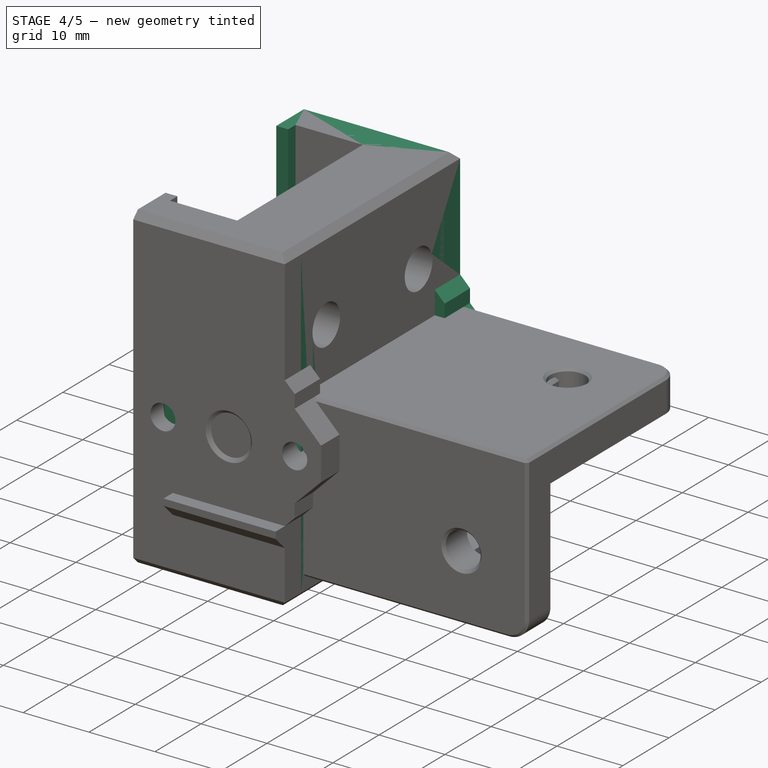
[diagram: stage 4 of 5 — iso view after this stage's code; geometry added in this stage tinted green]
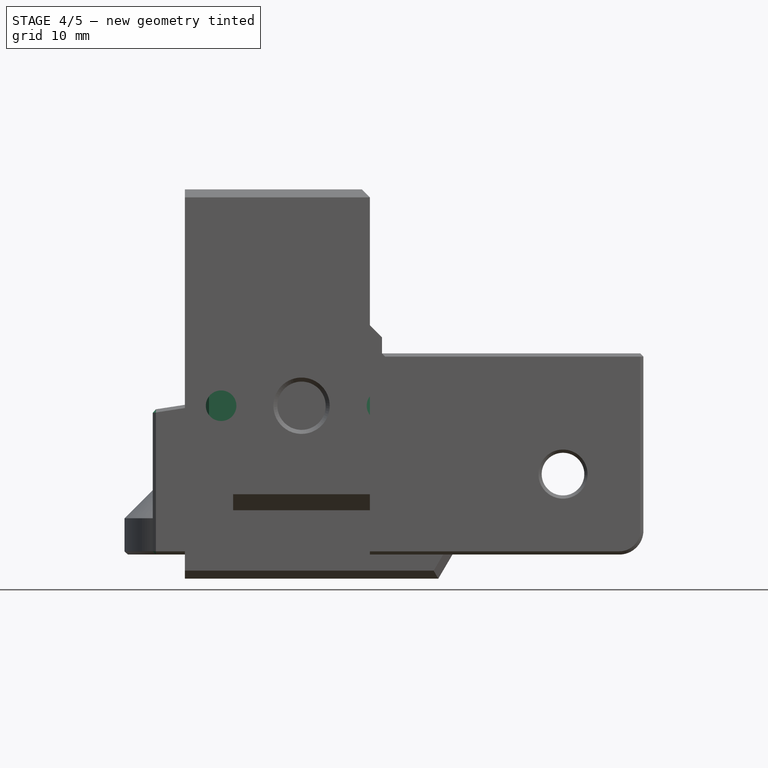
[diagram: stage 4 of 5 — front view after this stage's code; geometry added in this stage tinted green]
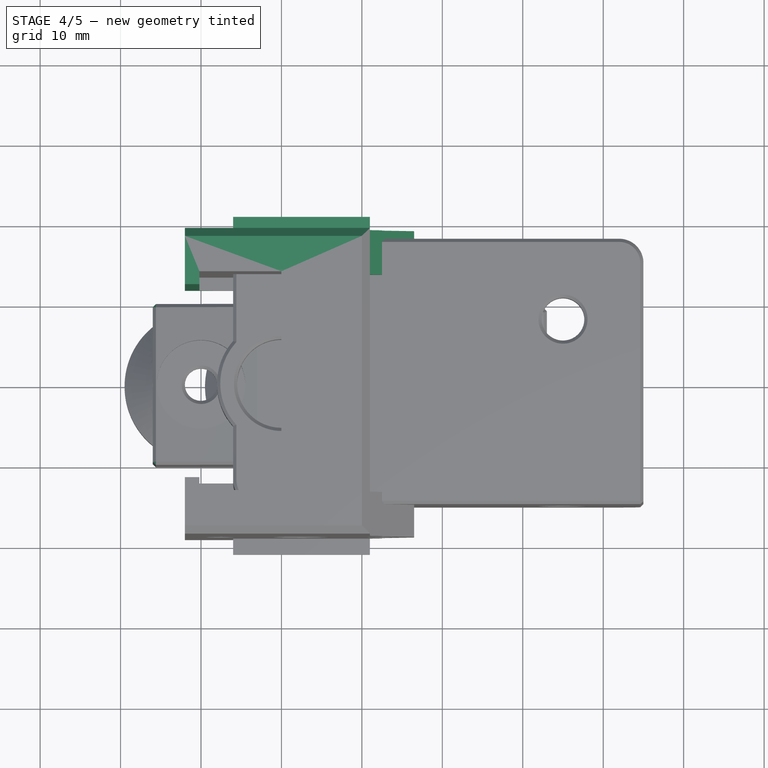
[diagram: stage 4 of 5 — top view after this stage's code; geometry added in this stage tinted green]
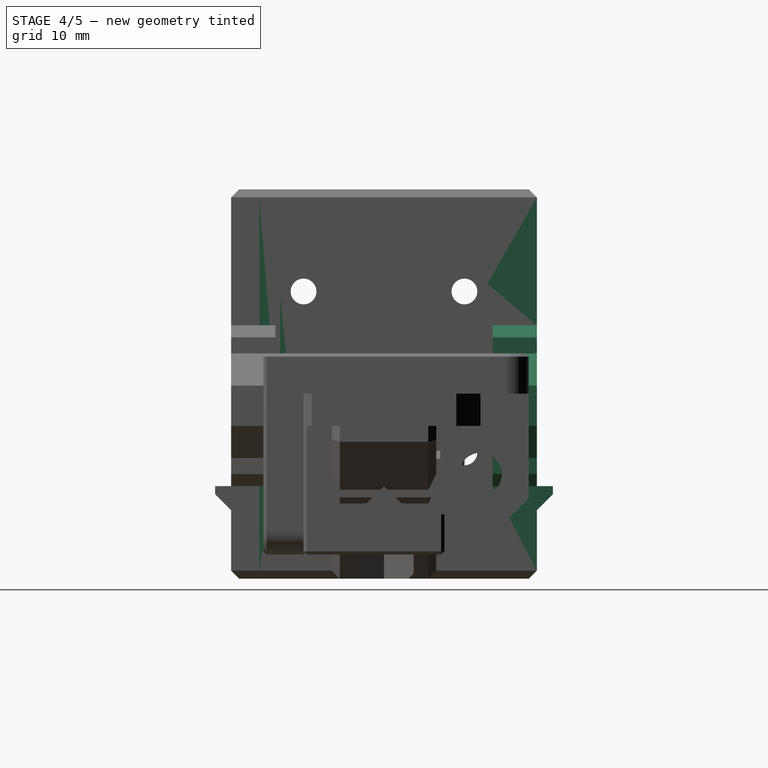
[diagram: stage 4 of 5 — right view after this stage's code; geometry added in this stage tinted green]
FEATURE [Sketcher::SketchObject] Sketch009
  ExternalGeometry = -> [Pocket005]
  FullyConstrained = true
  MapMode = 5
  Placement = pos=(-16,0,0) rot=(0.57735,-0.57735,-0.57735;2.0944rad)
  Support = -> [Pocket005]
  sketch-geometry (4):
    g0: ArcOfCircle CenterX=-4.5 CenterY=12.5 CenterZ=0 NormalX=0 NormalY=0 NormalZ=1 AngleXU=0 Radius=3.5 StartAngle=1.5708 EndAngle=4.71239
    g1: ArcOfCircle CenterX=4.5 CenterY=12.5 CenterZ=0 NormalX=0 NormalY=0 NormalZ=1 AngleXU=0 Radius=3.5 StartAngle=4.71239 EndAngle=7.85398
    g2: LineSegment StartX=-4.5 StartY=9 StartZ=0 EndX=4.5 EndY=9 EndZ=0
    g3: LineSegment StartX=-4.5 StartY=16 StartZ=0 EndX=4.5 EndY=16 EndZ=0
  constraints (8):
    c: Tangent(g0,g3) = 1.5708
    c: Tangent(g0,g2) = -1.5708
    c: Tangent(g2,g1) = -1.5708
    c: Tangent(g3,g1) = 1.5708
    c: Horizontal(g2)
    c: Coincident(g0,g-3)
    c: Coincident(g1,g-4)
    c: Radius(g0) = 3.5
FEATURE [Part::Feature] Defeatured
  shape: bbox 45 x 37.5 x 48.4 mm, 113 faces (baked)
FEATURE [PartDesign::FeatureBase] BaseFeature002
  BaseFeature = -> Defeatured
FEATURE [Sketcher::SketchObject] Sketch016
  ExternalGeometry = -> [BaseFeature002]
  FullyConstrained = true
  MapMode = 5
  Placement = pos=(0,0,13) rot=(1,0,0;3.14159rad)
  Support = -> [BaseFeature002]
  sketch-geometry (4):
    g0: LineSegment StartX=19.875 StartY=3.68061 StartZ=0 EndX=24.125 EndY=3.68061 EndZ=0
    g1: LineSegment StartX=24.125 StartY=3.68061 StartZ=0 EndX=24.125 EndY=-3.68061 EndZ=0
    g2: LineSegment StartX=24.125 StartY=-3.68061 StartZ=0 EndX=19.875 EndY=-3.68061 EndZ=0
    g3: LineSegment StartX=19.875 StartY=-3.68061 StartZ=0 EndX=19.875 EndY=3.68061 EndZ=0
  constraints (10):
    c: Coincident(g0,g1)
    c: Coincident(g1,g2)
    c: Coincident(g2,g3)
    c: Coincident(g3,g0)
    c: Horizontal(g0)
    c: Horizontal(g2)
    c: Vertical(g1)
    c: Vertical(g3)
    c: Coincident(g0,g-3)
    c: Coincident(g1,g-4)
FEATURE [PartDesign::Pocket] Pocket011
  BaseFeature = -> BaseFeature002
  Length = 0.2
  Length2 = 100
  Profile = -> Sketch016
  Type = 0
FEATURE [Sketcher::SketchObject] Sketch025
  ExternalGeometry = -> [Pocket020]
  FullyConstrained = true
  MapMode = 5
  Placement = pos=(0,0,0) rot=(0.57735,0.57735,0.57735;2.0944rad)
  Support = -> [Pocket020]
  sketch-geometry (8):
    g0: LineSegment StartX=-2.5 StartY=14.1 StartZ=0 EndX=2.5 EndY=14.1 EndZ=0
    g1: LineSegment StartX=2.5 StartY=14.1 StartZ=0 EndX=2.5 EndY=10.9 EndZ=0
    g2: LineSegment StartX=2.5 StartY=10.9 StartZ=0 EndX=-2.5 EndY=10.9 EndZ=0
    g3: LineSegment StartX=-2.5 StartY=10.9 StartZ=0 EndX=-2.5 EndY=14.1 EndZ=0
    g4: LineSegment StartX=10 StartY=14.1 StartZ=0 EndX=6.5 EndY=14.1 EndZ=0
    g5: LineSegment StartX=6.5 StartY=14.1 StartZ=0 EndX=6.5 EndY=10.9 EndZ=0
    g6: LineSegment StartX=6.5 StartY=10.9 StartZ=0 EndX=10 EndY=10.9 EndZ=0
    g7: LineSegment StartX=10 StartY=10.9 StartZ=0 EndX=10 EndY=14.1 EndZ=0
  constraints (24):
    c: Coincident(g0,g1)
    c: Coincident(g1,g2)
    c: Coincident(g2,g3)
    c: Coincident(g3,g0)
    c: Horizontal(g0)
    c: Horizontal(g2)
    c: Vertical(g1)
    c: Vertical(g3)
    c: Coincident(g4,g5)
    c: Coincident(g5,g6)
    c: Coincident(g6,g7)
    c: Coincident(g7,g4)
    c: Horizontal(g4)
    c: Horizontal(g6)
    c: Vertical(g5)
    c: Vertical(g7)
    c: PointOnObject(g4,g-3)
    c: Horizontal(g0,g4)
    c: Horizontal(g5,g1)
    c: DistanceX(g-5,g0) = 2
    c: DistanceX(g0,g-4) = 2
    c: DistanceX(g-4,g4) = 2
    c: DistanceY(g-4,g4) = 1.6
    c: DistanceY(g5,g-4) = 1.6
FEATURE [PartDesign::Pad] Pad004
  BaseFeature = -> Pocket020
  Direction = (1,1,1)
  Length = 1
  Length2 = 100
  Profile = -> Sketch025
  Type = 0
FEATURE [PartDesign::Chamfer] Chamfer004013007011015006009007001005003063003001002001002001007002015
  Angle = 45
  Base = -> Pad004 [Edge219,Edge207]
  BaseFeature = -> Pad004
  ChamferType = 0
  FlipDirection = false
  Size = 0.99
  Size2 = 1
  SupportTransform = false
FEATURE [PartDesign::Chamfer] Chamfer004013007011015006009007001005003063003001002001002001007002016
  Angle = 45
  Base = -> Chamfer004013007011015006009007001005003063003001002001002001007002015 [Edge70]
  BaseFeature = -> Chamfer004013007011015006009007001005003063003001002001002001007002015
  ChamferType = 0
  FlipDirection = false
  Size = 1
  Size2 = 1
  SupportTransform = false
FEATURE [PartDesign::Chamfer] Chamfer004013007011015006009007001005003063003001002001002001007002017
  Angle = 45
  Base = -> Chamfer004013007011015006009007001005003063003001002001002001007002016 [Face29,Edge37,Edge35,Edge4,Edge21,Edge36,Edge49,Edge48,Edge5,Edge41,Edge57,Edge51]
  BaseFeature = -> Chamfer004013007011015006009007001005003063003001002001002001007002016
  ChamferType = 0
  FlipDirection = false
  Size = 0.4
  Size2 = 1
  SupportTransform = false
FEATURE [PartDesign::Body] Body001  label="bed-arm-corner-1515"
  BaseFeature = -> Defeatured001001
  Group = -> [BaseFeature001,Sketch003,Pocket002,Sketch004,Pad001,Sketch005,Pad002,Sketch006,Pocket003,Sketch007,Pocket004,Sketch008,Pocket005,Sketch009,Pocket013,Chamfer004013007011015006009007001005003063003001002001002001007002011,Sketch018,Pocket014,Sketch019,Pocket015,Sketch020,Pocket016,Chamfer004013007011015006009007001005003063003001002001002001007002012,+16 more]
  Origin = -> Origin001
  Placement = pos=(32,0,27) rot=(0,0,1;0rad)
  Tip = -> Chamfer004013007011015006009007001005003063003001002001002001007002017
FEATURE [PartDesign::FeatureBase] Clone
  BaseFeature = -> Pocket020
FEATURE [Sketcher::SketchObject] Sketch026
  ExternalGeometry = -> [Clone]
  FullyConstrained = true
  MapMode = 5
  Placement = pos=(1.4e-15,2.6e-15,20) rot=(0,0,1;0rad)
  Support = -> [Clone]
  sketch-geometry (4):
    g0: LineSegment StartX=0 StartY=10 StartZ=0 EndX=30 EndY=10 EndZ=0
    g1: LineSegment StartX=30 StartY=10 StartZ=0 EndX=30 EndY=-10 EndZ=0
    g2: LineSegment StartX=30 StartY=-10 StartZ=0 EndX=0 EndY=-10 EndZ=0
    g3: LineSegment StartX=0 StartY=-10 StartZ=0 EndX=0 EndY=10 EndZ=0
  constraints (10):
    c: Coincident(g0,g1)
    c: Coincident(g1,g2)
    c: Coincident(g2,g3)
    c: Coincident(g3,g0)
    c: Horizontal(g0)
    c: Horizontal(g2)
    c: Vertical(g1)
    c: Vertical(g3)
    c: Coincident(g0,g-3)
    c: Coincident(g1,g-4)
FEATURE [PartDesign::Pocket] Pocket021
  BaseFeature = -> Clone
  Length = 15
  Length2 = 100
  Profile = -> Sketch026
  Refine = true
  Type = 0
FEATURE [Sketcher::SketchObject] Sketch027
  ExternalGeometry = -> [Pocket021]
  FullyConstrained = true
  MapMode = 5
  Placement = pos=(3e-16,5e-16,5) rot=(0,0,1;0rad)
  Support = -> [Pocket021]
  sketch-geometry (4):
    g0: LineSegment StartX=15 StartY=10 StartZ=0 EndX=30 EndY=10 EndZ=0
    g1: LineSegment StartX=30 StartY=10 StartZ=0 EndX=30 EndY=-10 EndZ=0
    g2: LineSegment StartX=30 StartY=-10 StartZ=0 EndX=15 EndY=-10 EndZ=0
    g3: LineSegment StartX=15 StartY=-10 StartZ=0 EndX=15 EndY=10 EndZ=0
  constraints (10):
    c: Coincident(g0,g1)
    c: Coincident(g1,g2)
    c: Coincident(g2,g3)
    c: Coincident(g3,g0)
    c: Horizontal(g0)
    c: Horizontal(g2)
    c: Vertical(g1)
    c: Vertical(g3)
    c: Coincident(g0,g-3)
    c: Coincident(g1,g-4)
FEATURE [PartDesign::Pocket] Pocket022
  BaseFeature = -> Pocket021
  Length = 5
  Length2 = 100
  Profile = -> Sketch027
  Refine = true
  Type = 1
FEATURE [Sketcher::SketchObject] Sketch028
  ExternalGeometry = -> [Pocket022]
  FullyConstrained = true
  MapMode = 5
  Placement = pos=(3e-16,5e-16,5) rot=(0,0,1;0rad)
  Support = -> [Pocket022]
  sketch-geometry (8):
    g0: LineSegment StartX=5.9 StartY=10 StartZ=0 EndX=9.1 EndY=10 EndZ=0
    g1: LineSegment StartX=9.1 StartY=10 StartZ=0 EndX=9.1 EndY=2 EndZ=0
    g2: LineSegment StartX=9.1 StartY=2 StartZ=0 EndX=5.9 EndY=2 EndZ=0
    g3: LineSegment StartX=5.9 StartY=2 StartZ=0 EndX=5.9 EndY=10 EndZ=0
    g4: LineSegment StartX=5.9 StartY=-10 StartZ=0 EndX=9.1 EndY=-10 EndZ=0
    g5: LineSegment StartX=9.1 StartY=-10 StartZ=0 EndX=9.1 EndY=-2 EndZ=0
    g6: LineSegment StartX=9.1 StartY=-2 StartZ=0 EndX=5.9 EndY=-2 EndZ=0
    g7: LineSegment StartX=5.9 StartY=-2 StartZ=0 EndX=5.9 EndY=-10 EndZ=0
  constraints (24):
    c: Coincident(g0,g1)
    c: Coincident(g1,g2)
    c: Coincident(g2,g3)
    c: Coincident(g3,g0)
    c: Horizontal(g0)
    c: Horizontal(g2)
    c: Vertical(g1)
    c: Vertical(g3)
    c: PointOnObject(g0,g-5)
    c: Coincident(g4,g5)
    c: Coincident(g5,g6)
    c: Coincident(g6,g7)
    c: Coincident(g7,g4)
    c: Horizontal(g4)
    c: Horizontal(g6)
    c: Vertical(g5)
    c: Vertical(g7)
    c: PointOnObject(g4,g-4)
    c: Vertical(g6,g2)
    c: Vertical(g1,g5)
    c: DistanceX(g2,g2) = 3.2
    c: DistanceX(g2,g-3) = 1.6
    c: DistanceY(g-3,g1) = 2
    c: DistanceY(g5,g-3) = 2
FEATURE [PartDesign::Pad] Pad005
  BaseFeature = -> Pocket022
  Direction = (1,1,1)
  Length = 1
  Length2 = 100
  Profile = -> Sketch028
  Type = 0
FEATURE [Sketcher::SketchObject] Sketch029
  ExternalGeometry = -> [Pad005]
  FullyConstrained = true
  MapMode = 5
  Placement = pos=(0,0,0) rot=(0.57735,0.57735,0.57735;2.0944rad)
  Support = -> [Pad005]
  sketch-geometry (8):
    g0: LineSegment StartX=-10 StartY=14.1 StartZ=0 EndX=-6.5 EndY=14.1 EndZ=0
    g1: LineSegment StartX=-6.5 StartY=14.1 StartZ=0 EndX=-6.5 EndY=10.9 EndZ=0
    g2: LineSegment StartX=-6.5 StartY=10.9 StartZ=0 EndX=-10 EndY=10.9 EndZ=0
    g3: LineSegment StartX=-10 StartY=10.9 StartZ=0 EndX=-10 EndY=14.1 EndZ=0
    g4: LineSegment StartX=6.5 StartY=14.1 StartZ=0 EndX=10 EndY=14.1 EndZ=0
    g5: LineSegment StartX=10 StartY=14.1 StartZ=0 EndX=10 EndY=10.9 EndZ=0
    g6: LineSegment StartX=10 StartY=10.9 StartZ=0 EndX=6.5 EndY=10.9 EndZ=0
    g7: LineSegment StartX=6.5 StartY=10.9 StartZ=0 EndX=6.5 EndY=14.1 EndZ=0
  constraints (24):
    c: Coincident(g0,g1)
    c: Coincident(g1,g2)
    c: Coincident(g2,g3)
    c: Coincident(g3,g0)
    c: Horizontal(g0)
    c: Horizontal(g2)
    c: Vertical(g1)
    c: Vertical(g3)
    c: PointOnObject(g0,g-3)
    c: Coincident(g4,g5)
    c: Coincident(g5,g6)
    c: Coincident(g6,g7)
    c: Coincident(g7,g4)
    c: Horizontal(g4)
    c: Horizontal(g6)
    c: Vertical(g5)
    c: Vertical(g7)
    c: PointOnObject(g5,g-4)
    c: Horizontal(g4,g0)
    c: Horizontal(g1,g6)
    c: DistanceX(g0,g-5) = 2
    c: DistanceX(g-6,g4) = 2
    c: DistanceY(g1,g1) = 3.2
    c: DistanceY(g-5,g0) = 1.6
FEATURE [PartDesign::Pad] Pad006
  BaseFeature = -> Pad005
  Direction = (1,1,1)
  Length = 1
  Length2 = 100
  Profile = -> Sketch029
  Type = 0
FEATURE [PartDesign::Chamfer] Chamfer004013007011015006009007001005003063003001002001002001007002018
  Angle = 45
  Base = -> Pad006 [Edge137,Edge135]
  BaseFeature = -> Pad006
  ChamferType = 0
  FlipDirection = false
  Size = 0.99
  Size2 = 1
  SupportTransform = false
FEATURE [PartDesign::Fillet] Fillet
  Base = -> Chamfer004013007011015006009007001005003063003001002001002001007002018 [Edge36,Edge11]
  BaseFeature = -> Chamfer004013007011015006009007001005003063003001002001002001007002018
  Radius = 2
  SupportTransform = false
FEATURE [PartDesign::Chamfer] Chamfer004013007011015006009007001005003063003001002001002001007002019
  Angle = 45
  Base = -> Fillet [Face5,Edge6,Edge8,Edge61,Edge10,Edge67,Edge41,Edge43]
  BaseFeature = -> Fillet
  ChamferType = 0
  FlipDirection = false
  Size = 0.4
  Size2 = 1
  SupportTransform = false
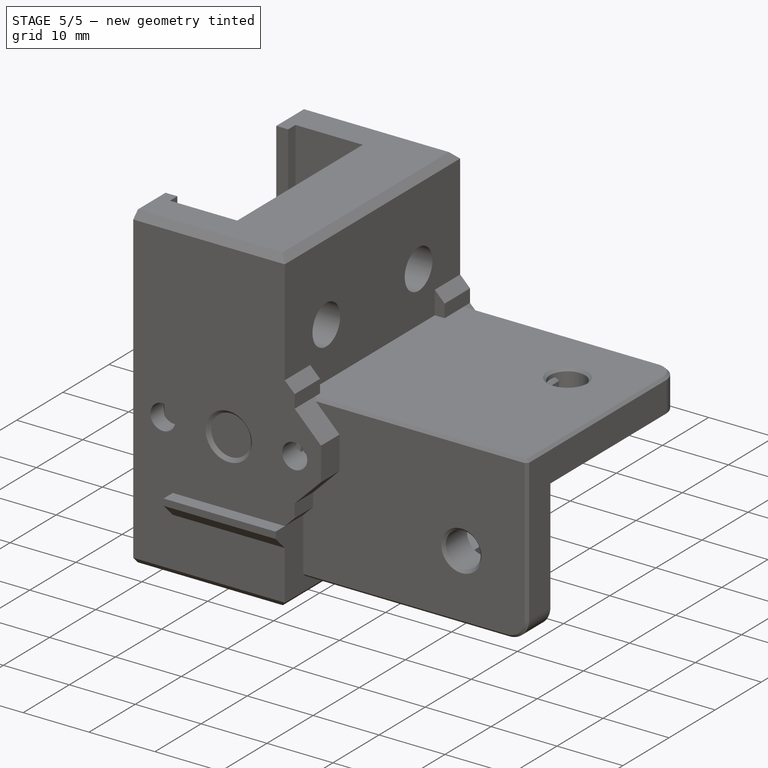
[diagram: stage 5 of 5 — iso view after this stage's code; geometry added in this stage tinted green]
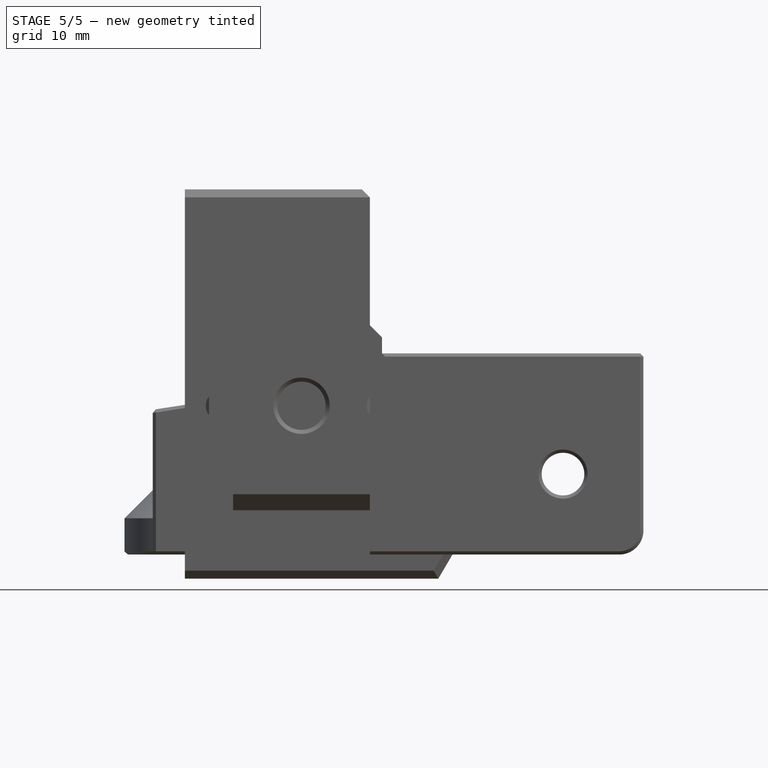
[diagram: stage 5 of 5 — front view after this stage's code; geometry added in this stage tinted green]
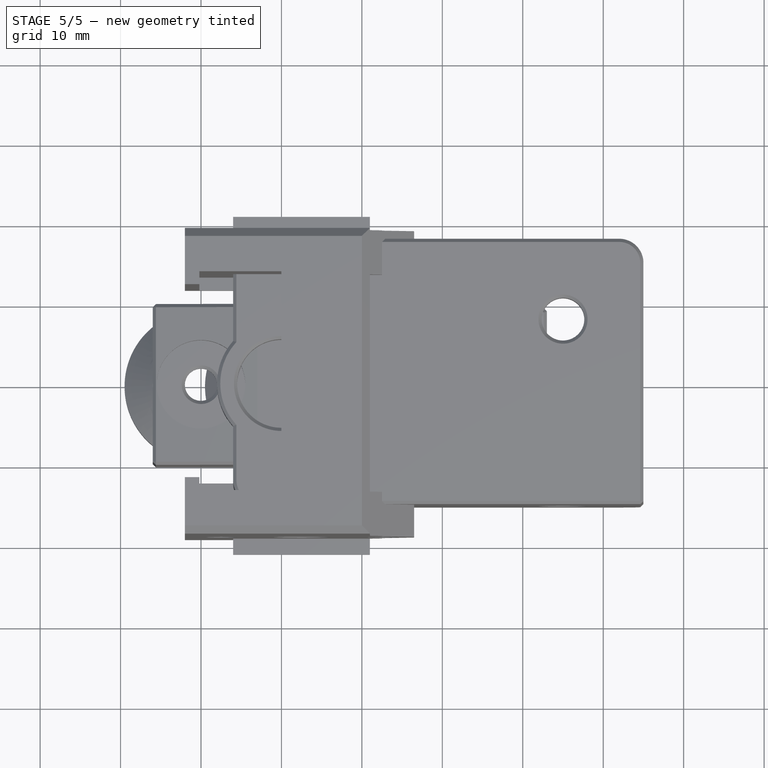
[diagram: stage 5 of 5 — top view after this stage's code; geometry added in this stage tinted green]
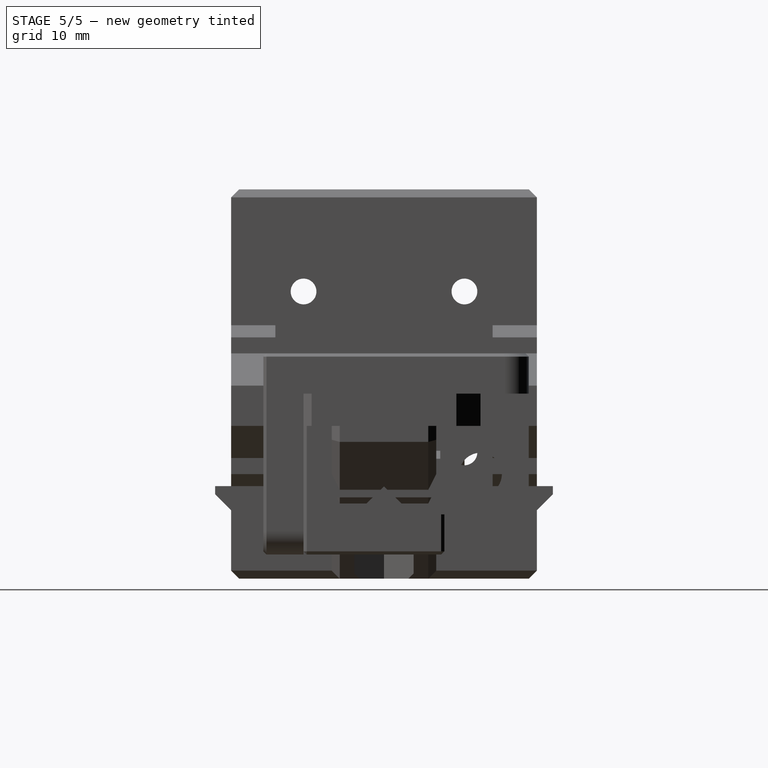
[diagram: stage 5 of 5 — right view after this stage's code; geometry added in this stage tinted green]
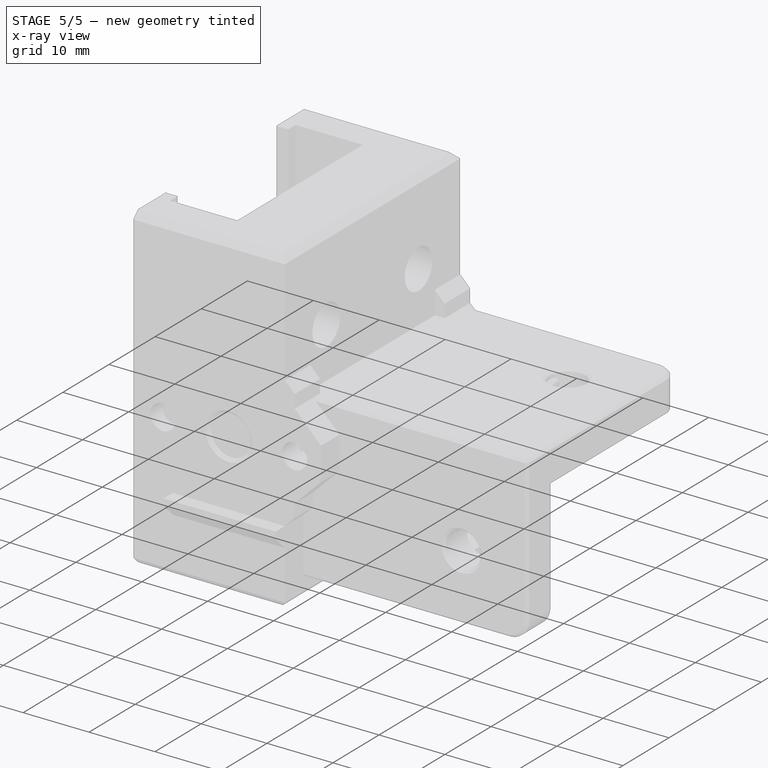
[diagram: stage 5 of 5 — x-ray composite at the iso view; earlier geometry ghosted, this stage's added geometry solid]
FEATURE [Part::Feature] Cut028006004005002  label="block-base002"
  shape: bbox 28.5 x 37.5 x 48.4 mm, 58 faces (baked)
FEATURE [Part::Feature] Chamfer004013007011015006009007001005003001
  shape: bbox 5.5 x 3 x 8 mm, 7 faces (baked)
FEATURE [Part::Feature] Cut028006004005011004002  label="supporter-rf002"
  shape: bbox 20 x 13 x 19 mm, 14 faces (baked)
FEATURE [Part::Feature] Chamfer004013007011015006009007001005003027001  label="slider-base"
  shape: bbox 22 x 24 x 8 mm, 13 faces (baked)
FEATURE [Part::Feature] Chamfer004013007011015006009007001005003063003001002001002001007002001  label="rail-bolt-cut-template001"
  shape: bbox 13 x 24 x 10 mm, 8 faces (baked)
FEATURE [Part::Cylinder] Cylinder
  Angle = 360
  AttacherType = Attacher::AttachEngine3D
  Height = 10
  Placement = pos=(22,0,21) rot=(0,0,1;0rad)
  Radius = 8
FEATURE [Part::Cut] Cut
  Base = -> Chamfer004013007011015006009007001005003027001
  Tool = -> Cylinder
FEATURE [Part::Chamfer] Chamfer
  Base = -> Cut
  Edges = 1 edges r=0.4: [Edge30]
FEATURE [Part::MultiFuse] Fusion
  Shapes = -> [Chamfer004013007011015006009007001005003001,Cut028006004005002,Chamfer,Cut028006004005011004002]
FEATURE [Part::Cut] Cut028006004005011004003
  Base = -> Fusion
  Tool = -> Chamfer004013007011015006009007001005003063003001002001002001007002001
FEATURE [Part::Feature] Fusion004025023001  label="m3rf001"
  Placement = pos=(0,4.5,0) rot=(0,0,1;0rad)
  shape: bbox 28.3 x 6.4 x 6.4 mm, 6 faces (baked)
FEATURE [Part::Feature] Fusion004025023002  label="m3rf002"
  Placement = pos=(0,-4.5,0) rot=(0,0,1;0rad)
  shape: bbox 28.3 x 6.4 x 6.4 mm, 6 faces (baked)
FEATURE [Part::MultiFuse] Fusion004025023003
  Shapes = -> [Fusion004025023002,Fusion004025023001]
FEATURE [Part::Cut] Cut028006004005011004004
  Base = -> Cut028006004005011004003
  Refine = true
  Tool = -> Fusion004025023003
FEATURE [PartDesign::FeatureBase] BaseFeature
  BaseFeature = -> Cut028006004005011004004
FEATURE [Sketcher::SketchObject] Sketch
  ExternalGeometry = -> [BaseFeature]
  FullyConstrained = true
  MapMode = 5
  Placement = pos=(0,-6.5,0) rot=(1,0,0;1.5708rad)
  Support = -> [BaseFeature]
  sketch-geometry (1):
    g0: Circle CenterX=22 CenterY=12 CenterZ=0 NormalX=0 NormalY=0 NormalZ=1 AngleXU=0 Radius=3
  constraints (2):
    c: Coincident(g0,g-3)
    c: Radius(g0) = 3
FEATURE [PartDesign::Pad] Pad
  BaseFeature = -> BaseFeature
  Direction = (1,1,1)
  Length = 10
  Length2 = 100
  Profile = -> Sketch
  Refine = true
  Type = 3
  UpToFace = -> BaseFeature [Face4]
FEATURE [Sketcher::SketchObject] Sketch001
  ExternalGeometry = -> [Pad]
  FullyConstrained = true
  MapMode = 5
  Placement = pos=(0,0,21) rot=(0,0,1;0rad)
  Support = -> [Pad]
  sketch-geometry (1):
    g0: Circle CenterX=22 CenterY=0 CenterZ=0 NormalX=0 NormalY=0 NormalZ=1 AngleXU=0 Radius=2
  constraints (2):
    c: Coincident(g0,g-3)
    c: Radius(g0) = 2
FEATURE [PartDesign::Pocket] Pocket
  BaseFeature = -> Pad
  Length = 8
  Length2 = 100
  Profile = -> Sketch001
  Type = 0
FEATURE [PartDesign::Plane] DatumPlane
  AttachmentOffset = pos=(0,0,13) rot=(0,0,1;0rad)
  Length = 60
  MapMode = 5
  Placement = pos=(0,0,13) rot=(0,0,1;0rad)
  ResizeMode = 0
  Support = -> [XY_Plane]
  Width = 60
FEATURE [Sketcher::SketchObject] Sketch002
  ExternalGeometry = -> [Pocket]
  FullyConstrained = true
  MapMode = 5
  Placement = pos=(0,0,13) rot=(0,0,1;0rad)
  Support = -> [DatumPlane]
  sketch-geometry (7):
    g0: LineSegment StartX=26.25 StartY=0 StartZ=0 EndX=24.125 EndY=3.68061 EndZ=0
    g1: LineSegment StartX=24.125 StartY=3.68061 StartZ=0 EndX=19.875 EndY=3.68061 EndZ=0
    g2: LineSegment StartX=19.875 StartY=3.68061 StartZ=0 EndX=17.75 EndY=9.55e-14 EndZ=0
    g3: LineSegment StartX=17.75 StartY=9.55e-14 StartZ=0 EndX=19.875 EndY=-3.68061 EndZ=0
    g4: LineSegment StartX=19.875 StartY=-3.68061 StartZ=0 EndX=24.125 EndY=-3.68061 EndZ=0
    g5: LineSegment StartX=24.125 StartY=-3.68061 StartZ=0 EndX=26.25 EndY=0 EndZ=0
    g6: Circle CenterX=22 CenterY=0 CenterZ=0 NormalX=0 NormalY=0 NormalZ=1 AngleXU=0 Radius=4.25
  constraints (16):
    c: Coincident(g0,g1)
    c: Coincident(g1,g2)
    c: Coincident(g2,g3)
    c: Coincident(g3,g4)
    c: Coincident(g4,g5)
    c: Coincident(g5,g0)
    c: Equal(g0, g1-g5) x5
    c: PointOnObject(g0,g6)
    c: PointOnObject(g1,g6)
    c: PointOnObject(g2,g6)
    c: PointOnObject(g3,g6)
    c: PointOnObject(g4,g6)
    c: PointOnObject(g5,g6)
    c: Coincident(g6,g-3)
    c: PointOnObject(g5,g-1)
    c: Radius(g6) = 4.25
FEATURE [PartDesign::Pocket] Pocket001
  BaseFeature = -> Pocket
  Length = 5
  Length2 = 100
  Profile = -> Sketch002
  Type = 1
FEATURE [PartDesign::Chamfer] Chamfer004013007011015006009007001005003063003001002001002001007002002
  Angle = 45
  Base = -> Pocket001 [Edge159,Edge234]
  BaseFeature = -> Pocket001
  ChamferType = 0
  FlipDirection = false
  Size = 0.4
  Size2 = 1
  SupportTransform = false
FEATURE [PartDesign::Chamfer] Chamfer004013007011015006009007001005003063003001002001002001007002003
  Angle = 45
  Base = -> Chamfer004013007011015006009007001005003063003001002001002001007002002 [Edge86,Edge82,Edge83,Edge84,Edge87,Edge85,Edge245,Edge244]
  BaseFeature = -> Chamfer004013007011015006009007001005003063003001002001002001007002002
  ChamferType = 0
  FlipDirection = false
  Size = 0.4
  Size2 = 1
  SupportTransform = false
FEATURE [Sketcher::SketchObject] Sketch017
  ExternalGeometry = -> [Pocket011]
  FullyConstrained = true
  MapMode = 5
  Placement = pos=(0,0,13.2) rot=(1,0,0;3.14159rad)
  Support = -> [Pocket011]
  sketch-geometry (4):
    g0: LineSegment StartX=19.875 StartY=2.125 StartZ=0 EndX=24.125 EndY=2.125 EndZ=0
    g1: LineSegment StartX=24.125 StartY=2.125 StartZ=0 EndX=24.125 EndY=-2.125 EndZ=0
    g2: LineSegment StartX=24.125 StartY=-2.125 StartZ=0 EndX=19.875 EndY=-2.125 EndZ=0
    g3: LineSegment StartX=19.875 StartY=-2.125 StartZ=0 EndX=19.875 EndY=2.125 EndZ=0
  constraints (12):
    c: Coincident(g0,g1)
    c: Coincident(g1,g2)
    c: Coincident(g2,g3)
    c: Coincident(g3,g0)
    c: Horizontal(g0)
    c: Horizontal(g2)
    c: Vertical(g1)
    c: Vertical(g3)
    c: PointOnObject(g0,g-3)
    c: PointOnObject(g1,g-4)
    c: DistanceY(g1,g1) = 4.25
    c: DistanceY(g-1,g0) = 2.125
FEATURE [PartDesign::Pocket] Pocket012
  BaseFeature = -> Pocket011
  Length = 0.2
  Length2 = 100
  Profile = -> Sketch017
  Type = 0
FEATURE [PartDesign::Chamfer] Chamfer004013007011015006009007001005003063003001002001002001007002010
  Angle = 45
  Base = -> Pocket012 [Edge287]
  BaseFeature = -> Pocket012
  ChamferType = 0
  FlipDirection = false
  Size = 0.12
  Size2 = 1
  SupportTransform = false
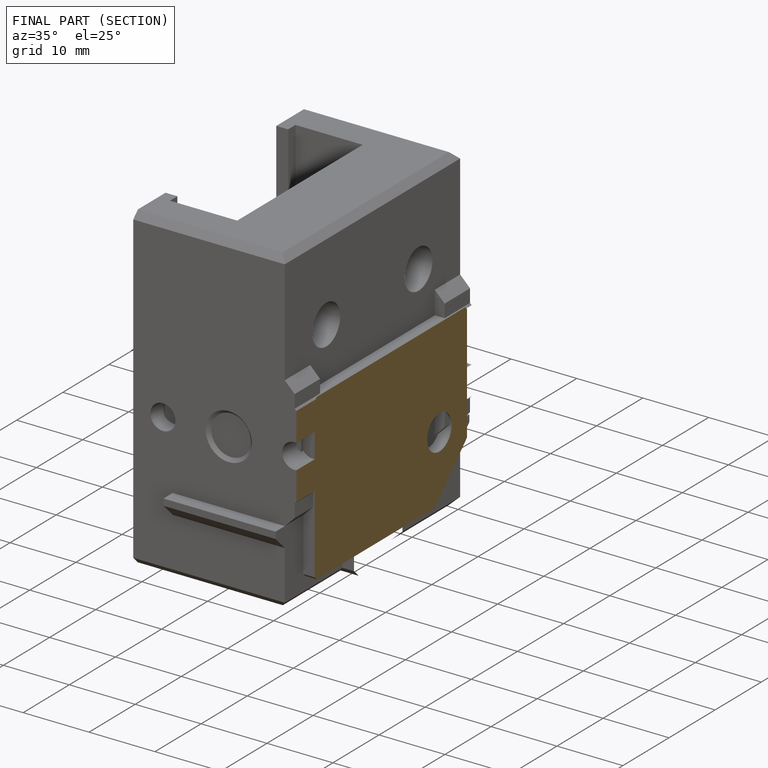
[diagram: finished part — half-section view (interior)]
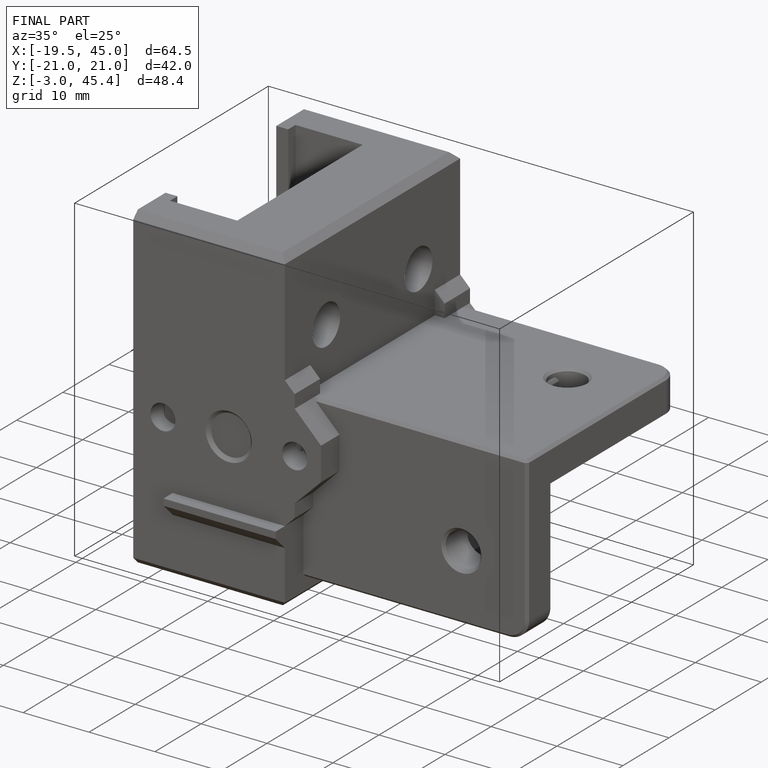
[diagram: finished part — iso view with bounding-box wireframe]
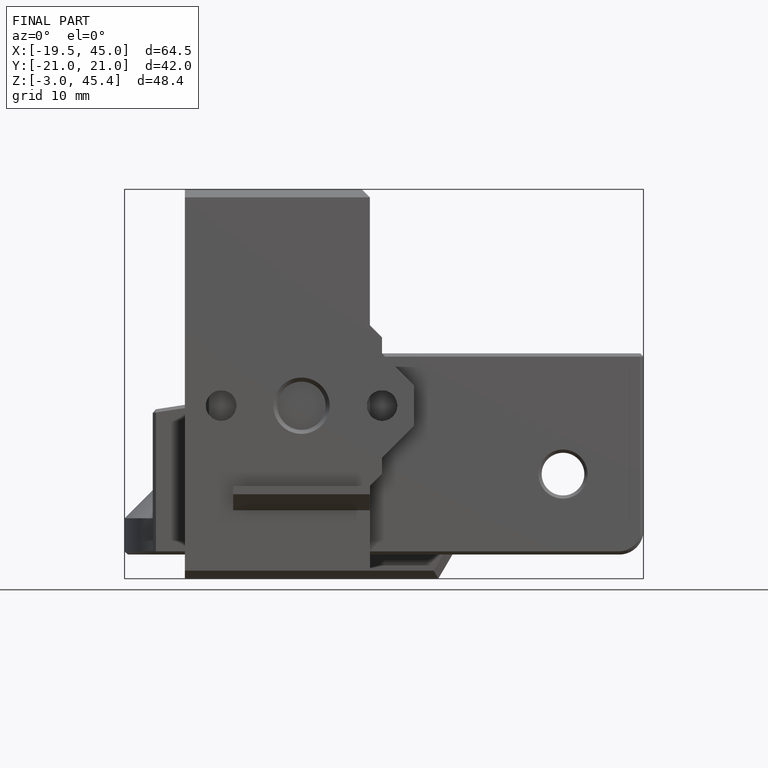
[diagram: finished part — front view with bounding-box wireframe]
